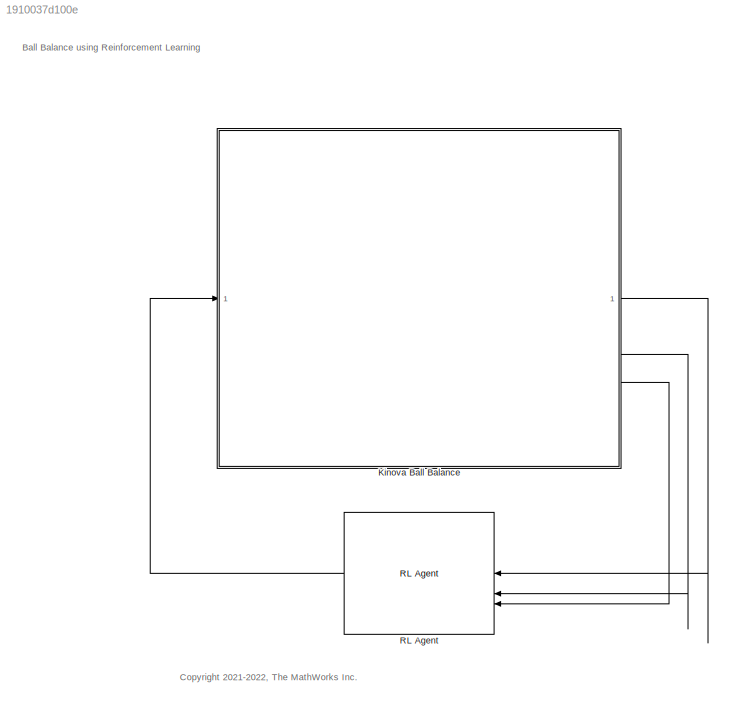
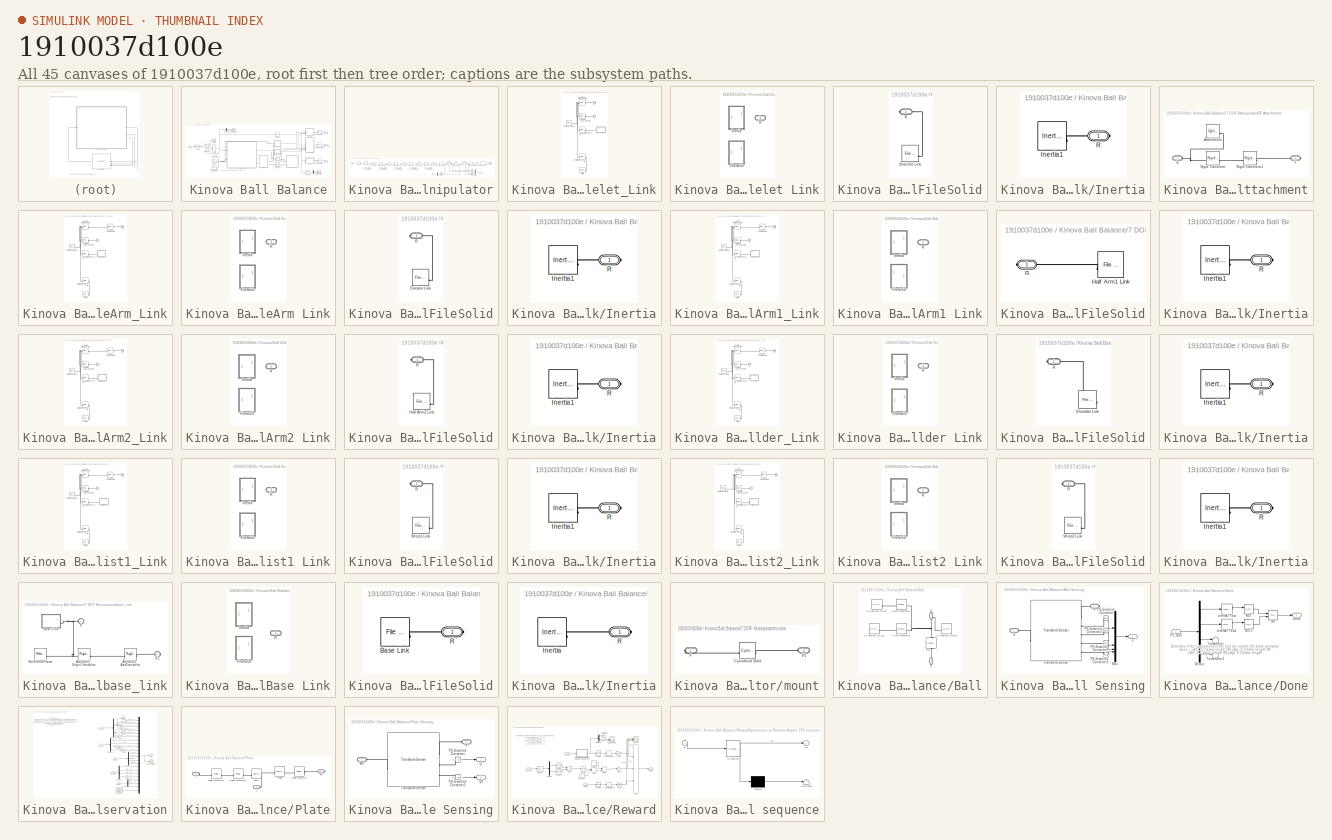
[diagram: thumbnail index - all 45 canvases of the model, root first then tree order]
MODEL slx_1910037d100e
KIND model
CONFIG AbsTol = 1e-3
CONFIG EnableMultiTasking = off
CONFIG FixedStep = auto
CONFIG MaxStep = auto
CONFIG MinStep = auto
CONFIG RelTol = 1e-2
CONFIG SampleTimeConstraint = Unconstrained
CONFIG SolverName = ode15s
CONFIG StartTime = 0.0
CONFIG StopTime = 10.0
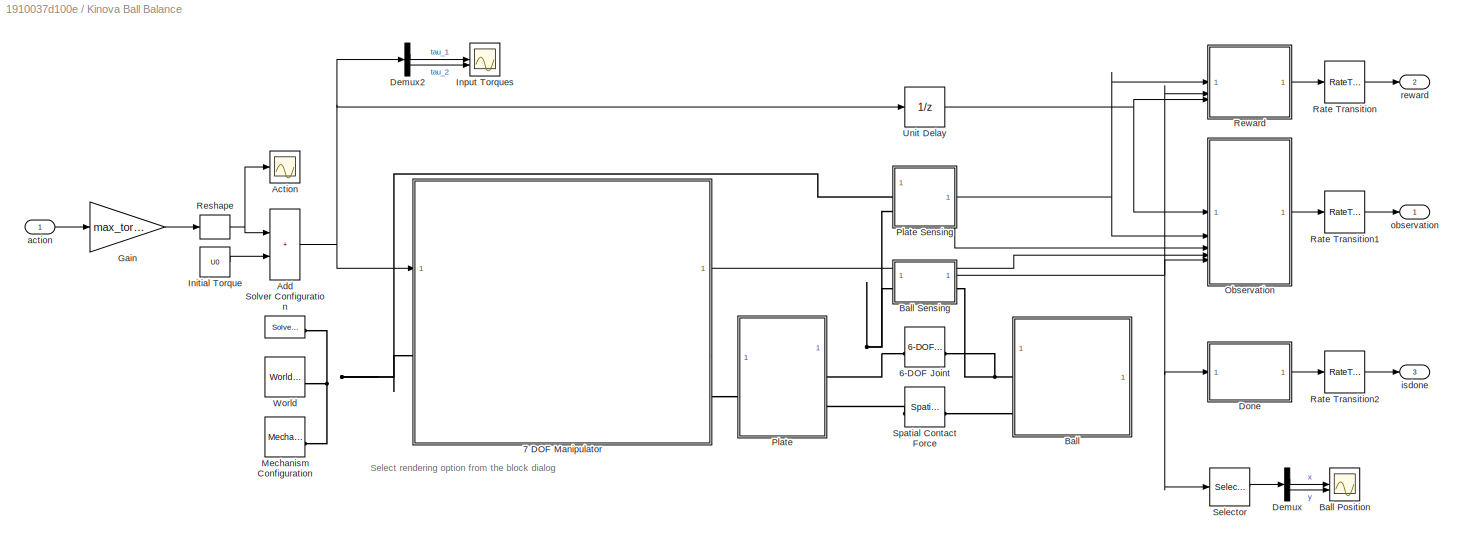
BLOCK [SubSystem] Kinova Ball Balance
BLOCK [Reference] Kinova Ball Balance/6-DOF Joint  REF=sm_lib/Joints/6-DOF Joint
  SourceBlock = sm_lib/Joints/6-DOF Joint
  SourceType = 6-DOF Joint
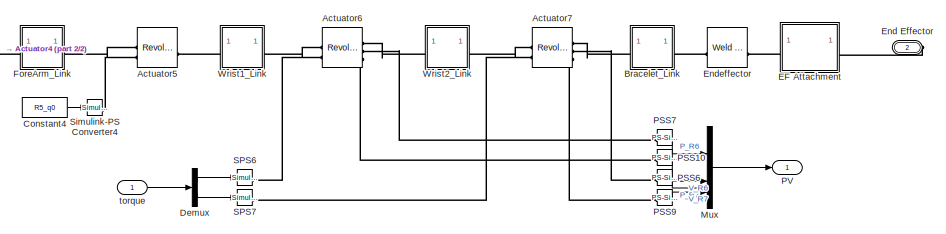
[diagram: Kinova Ball Balance/7 DOF Manipulator - part 1/2, right side, full height]
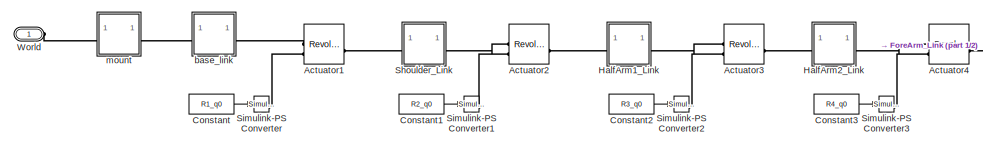
[diagram: Kinova Ball Balance/7 DOF Manipulator - part 2/2, middle left region]
BLOCK [SubSystem] Kinova Ball Balance/7 DOF Manipulator
BLOCK [Reference] Kinova Ball Balance/7 DOF Manipulator/Actuator1  REF=sm_lib/Joints/Revolute Joint
  SourceBlock = sm_lib/Joints/Revolute Joint
  SourceType = Revolute Joint
BLOCK [Reference] Kinova Ball Balance/7 DOF Manipulator/Actuator2  REF=sm_lib/Joints/Revolute Joint
  SourceBlock = sm_lib/Joints/Revolute Joint
  SourceType = Revolute Joint
BLOCK [Reference] Kinova Ball Balance/7 DOF Manipulator/Actuator3  REF=sm_lib/Joints/Revolute Joint
  SourceBlock = sm_lib/Joints/Revolute Joint
  SourceType = Revolute Joint
BLOCK [Reference] Kinova Ball Balance/7 DOF Manipulator/Actuator4  REF=sm_lib/Joints/Revolute Joint
  SourceBlock = sm_lib/Joints/Revolute Joint
  SourceType = Revolute Joint
BLOCK [Reference] Kinova Ball Balance/7 DOF Manipulator/Actuator5  REF=sm_lib/Joints/Revolute Joint
  SourceBlock = sm_lib/Joints/Revolute Joint
  SourceType = Revolute Joint
BLOCK [Reference] Kinova Ball Balance/7 DOF Manipulator/Actuator6  REF=sm_lib/Joints/Revolute Joint
  SourceBlock = sm_lib/Joints/Revolute Joint
  SourceType = Revolute Joint
BLOCK [Reference] Kinova Ball Balance/7 DOF Manipulator/Actuator7  REF=sm_lib/Joints/Revolute Joint
  SourceBlock = sm_lib/Joints/Revolute Joint
  SourceType = Revolute Joint
BLOCK [SubSystem] Kinova Ball Balance/7 DOF Manipulator/Bracelet_Link
BLOCK [Reference] Kinova Ball Balance/7 DOF Manipulator/Bracelet_Link/Actuator7_AxisInvTransform  REF=sm_lib/Frames and
Transforms/Rigid
Transform
  SourceBlock = sm_lib/Frames and\nTransforms/Rigid\nTransform
  SourceType = Rigid\nTransform
BLOCK [SubSystem] Kinova Ball Balance/7 DOF Manipulator/Bracelet_Link/Bracelet Link
  LabelModeActiveChoice = Choice
  Variant = on
  VariantControl = Choice
  VariantControlMode = label
BLOCK [SubSystem] Kinova Ball Balance/7 DOF Manipulator/Bracelet_Link/Bracelet Link/FileSolid
  VariantControl = Choice_1
BLOCK [Reference] Kinova Ball Balance/7 DOF Manipulator/Bracelet_Link/Bracelet Link/FileSolid/Bracelet Link  REF=sm_lib/Body Elements/File Solid
  SourceBlock = sm_lib/Body Elements/File Solid
  SourceType = File Solid
BLOCK [PMIOPort] Kinova Ball Balance/7 DOF Manipulator/Bracelet_Link/Bracelet Link/FileSolid/R
  Side = Right
BLOCK [SubSystem] Kinova Ball Balance/7 DOF Manipulator/Bracelet_Link/Bracelet Link/Inertia
  VariantControl = Choice
BLOCK [Reference] Kinova Ball Balance/7 DOF Manipulator/Bracelet_Link/Bracelet Link/Inertia/Inertia1  REF=sm_lib/Body Elements/Inertia
  SourceBlock = sm_lib/Body Elements/Inertia
  SourceType = Inertia
BLOCK [PMIOPort] Kinova Ball Balance/7 DOF Manipulator/Bracelet_Link/Bracelet Link/Inertia/R
  Side = Right
BLOCK [PMIOPort] Kinova Ball Balance/7 DOF Manipulator/Bracelet_Link/Bracelet Link/R
  Side = Right
BLOCK [Reference] Kinova Ball Balance/7 DOF Manipulator/Bracelet_Link/Endeffector_OriginTransform  REF=sm_lib/Frames and
Transforms/Rigid
Transform
  SourceBlock = sm_lib/Frames and\nTransforms/Rigid\nTransform
  SourceType = Rigid\nTransform
BLOCK [PMIOPort] Kinova Ball Balance/7 DOF Manipulator/Bracelet_Link/F
  Side = Left
BLOCK [PMIOPort] Kinova Ball Balance/7 DOF Manipulator/Bracelet_Link/F1
  Port = 2
  Side = Right
BLOCK [Reference] Kinova Ball Balance/7 DOF Manipulator/Bracelet_Link/Inertia  REF=sm_lib/Body Elements/Inertia
  SourceBlock = sm_lib/Body Elements/Inertia
  SourceType = Inertia
BLOCK [Reference] Kinova Ball Balance/7 DOF Manipulator/Bracelet_Link/InertiaOriginTransform  REF=sm_lib/Frames and
Transforms/Rigid
Transform
  SourceBlock = sm_lib/Frames and\nTransforms/Rigid\nTransform
  SourceType = Rigid\nTransform
BLOCK [Reference] Kinova Ball Balance/7 DOF Manipulator/Bracelet_Link/ReferenceFrame  REF=sm_lib/Frames and
Transforms/Reference
Frame
  SourceBlock = sm_lib/Frames and\nTransforms/Reference\nFrame
  SourceType = Reference\nFrame
BLOCK [Reference] Kinova Ball Balance/7 DOF Manipulator/Bracelet_Link/VisualOriginTransform  REF=sm_lib/Frames and
Transforms/Rigid
Transform
  SourceBlock = sm_lib/Frames and\nTransforms/Rigid\nTransform
  SourceType = Rigid\nTransform
BLOCK [Constant] Kinova Ball Balance/7 DOF Manipulator/Constant
  Value = R1_q0
BLOCK [Constant] Kinova Ball Balance/7 DOF Manipulator/Constant1
  Value = R2_q0
BLOCK [Constant] Kinova Ball Balance/7 DOF Manipulator/Constant2
  Value = R3_q0
BLOCK [Constant] Kinova Ball Balance/7 DOF Manipulator/Constant3
  Value = R4_q0
BLOCK [Constant] Kinova Ball Balance/7 DOF Manipulator/Constant4
  Value = R5_q0
BLOCK [Demux] Kinova Ball Balance/7 DOF Manipulator/Demux
  Outputs = 2
BLOCK [SubSystem] Kinova Ball Balance/7 DOF Manipulator/EF Attachment
BLOCK [Reference] Kinova Ball Balance/7 DOF Manipulator/EF Attachment/Attachment  REF=sm_lib/Body Elements/Cylindrical Solid
  SourceBlock = sm_lib/Body Elements/Cylindrical Solid
  SourceType = Cylindrical Solid
BLOCK [PMIOPort] Kinova Ball Balance/7 DOF Manipulator/EF Attachment/B
  Side = Left
BLOCK [PMIOPort] Kinova Ball Balance/7 DOF Manipulator/EF Attachment/F
  Port = 2
  Side = Right
BLOCK [Reference] Kinova Ball Balance/7 DOF Manipulator/EF Attachment/Rigid Transform  REF=sm_lib/Frames and
Transforms/Rigid
Transform
  SourceBlock = sm_lib/Frames and\nTransforms/Rigid\nTransform
  SourceType = Rigid\nTransform
BLOCK [Reference] Kinova Ball Balance/7 DOF Manipulator/EF Attachment/Rigid Transform1  REF=sm_lib/Frames and
Transforms/Rigid
Transform
  SourceBlock = sm_lib/Frames and\nTransforms/Rigid\nTransform
  SourceType = Rigid\nTransform
BLOCK [PMIOPort] Kinova Ball Balance/7 DOF Manipulator/End Effector
  Port = 2
  Side = Right
BLOCK [Reference] Kinova Ball Balance/7 DOF Manipulator/Endeffector  REF=sm_lib/Joints/Weld Joint
  SourceBlock = sm_lib/Joints/Weld Joint
  SourceType = Weld Joint
BLOCK [SubSystem] Kinova Ball Balance/7 DOF Manipulator/ForeArm_Link
BLOCK [Reference] Kinova Ball Balance/7 DOF Manipulator/ForeArm_Link/Actuator4_AxisInvTransform  REF=sm_lib/Frames and
Transforms/Rigid
Transform
  SourceBlock = sm_lib/Frames and\nTransforms/Rigid\nTransform
  SourceType = Rigid\nTransform
BLOCK [Reference] Kinova Ball Balance/7 DOF Manipulator/ForeArm_Link/Actuator5_AxisTransform  REF=sm_lib/Frames and
Transforms/Rigid
Transform
  SourceBlock = sm_lib/Frames and\nTransforms/Rigid\nTransform
  SourceType = Rigid\nTransform
BLOCK [Reference] Kinova Ball Balance/7 DOF Manipulator/ForeArm_Link/Actuator5_OriginTransform  REF=sm_lib/Frames and
Transforms/Rigid
Transform
  SourceBlock = sm_lib/Frames and\nTransforms/Rigid\nTransform
  SourceType = Rigid\nTransform
BLOCK [PMIOPort] Kinova Ball Balance/7 DOF Manipulator/ForeArm_Link/F
  Side = Left
BLOCK [PMIOPort] Kinova Ball Balance/7 DOF Manipulator/ForeArm_Link/F1
  Port = 2
  Side = Right
BLOCK [SubSystem] Kinova Ball Balance/7 DOF Manipulator/ForeArm_Link/ForeArm Link
  LabelModeActiveChoice = Choice
  Variant = on
  VariantControl = Choice
  VariantControlMode = label
BLOCK [SubSystem] Kinova Ball Balance/7 DOF Manipulator/ForeArm_Link/ForeArm Link/FileSolid
  VariantControl = Choice_1
BLOCK [Reference] Kinova Ball Balance/7 DOF Manipulator/ForeArm_Link/ForeArm Link/FileSolid/Forearm Link  REF=sm_lib/Body Elements/File Solid
  SourceBlock = sm_lib/Body Elements/File Solid
  SourceType = File Solid
BLOCK [PMIOPort] Kinova Ball Balance/7 DOF Manipulator/ForeArm_Link/ForeArm Link/FileSolid/R
  Side = Right
BLOCK [SubSystem] Kinova Ball Balance/7 DOF Manipulator/ForeArm_Link/ForeArm Link/Inertia
  VariantControl = Choice
BLOCK [Reference] Kinova Ball Balance/7 DOF Manipulator/ForeArm_Link/ForeArm Link/Inertia/Inertia1  REF=sm_lib/Body Elements/Inertia
  SourceBlock = sm_lib/Body Elements/Inertia
  SourceType = Inertia
BLOCK [PMIOPort] Kinova Ball Balance/7 DOF Manipulator/ForeArm_Link/ForeArm Link/Inertia/R
  Side = Right
BLOCK [PMIOPort] Kinova Ball Balance/7 DOF Manipulator/ForeArm_Link/ForeArm Link/R
  Side = Right
BLOCK [Reference] Kinova Ball Balance/7 DOF Manipulator/ForeArm_Link/Inertia  REF=sm_lib/Body Elements/Inertia
  SourceBlock = sm_lib/Body Elements/Inertia
  SourceType = Inertia
BLOCK [Reference] Kinova Ball Balance/7 DOF Manipulator/ForeArm_Link/InertiaOriginTransform  REF=sm_lib/Frames and
Transforms/Rigid
Transform
  SourceBlock = sm_lib/Frames and\nTransforms/Rigid\nTransform
  SourceType = Rigid\nTransform
BLOCK [Reference] Kinova Ball Balance/7 DOF Manipulator/ForeArm_Link/ReferenceFrame  REF=sm_lib/Frames and
Transforms/Reference
Frame
  SourceBlock = sm_lib/Frames and\nTransforms/Reference\nFrame
  SourceType = Reference\nFrame
BLOCK [Reference] Kinova Ball Balance/7 DOF Manipulator/ForeArm_Link/VisualOriginTransform  REF=sm_lib/Frames and
Transforms/Rigid
Transform
  SourceBlock = sm_lib/Frames and\nTransforms/Rigid\nTransform
  SourceType = Rigid\nTransform
BLOCK [SubSystem] Kinova Ball Balance/7 DOF Manipulator/HalfArm1_Link
BLOCK [Reference] Kinova Ball Balance/7 DOF Manipulator/HalfArm1_Link/Actuator2_AxisInvTransform  REF=sm_lib/Frames and
Transforms/Rigid
Transform
  SourceBlock = sm_lib/Frames and\nTransforms/Rigid\nTransform
  SourceType = Rigid\nTransform
BLOCK [Reference] Kinova Ball Balance/7 DOF Manipulator/HalfArm1_Link/Actuator3_AxisTransform  REF=sm_lib/Frames and
Transforms/Rigid
Transform
  SourceBlock = sm_lib/Frames and\nTransforms/Rigid\nTransform
  SourceType = Rigid\nTransform
BLOCK [Reference] Kinova Ball Balance/7 DOF Manipulator/HalfArm1_Link/Actuator3_OriginTransform  REF=sm_lib/Frames and
Transforms/Rigid
Transform
  SourceBlock = sm_lib/Frames and\nTransforms/Rigid\nTransform
  SourceType = Rigid\nTransform
BLOCK [PMIOPort] Kinova Ball Balance/7 DOF Manipulator/HalfArm1_Link/F
  Side = Left
BLOCK [PMIOPort] Kinova Ball Balance/7 DOF Manipulator/HalfArm1_Link/F1
  Port = 2
  Side = Right
BLOCK [SubSystem] Kinova Ball Balance/7 DOF Manipulator/HalfArm1_Link/HalfArm1 Link
  LabelModeActiveChoice = Choice
  Variant = on
  VariantControl = Choice
  VariantControlMode = label
BLOCK [SubSystem] Kinova Ball Balance/7 DOF Manipulator/HalfArm1_Link/HalfArm1 Link/FileSolid
  VariantControl = Choice_1
BLOCK [Reference] Kinova Ball Balance/7 DOF Manipulator/HalfArm1_Link/HalfArm1 Link/FileSolid/Half Arm1 Link  REF=sm_lib/Body Elements/File Solid
  SourceBlock = sm_lib/Body Elements/File Solid
  SourceType = File Solid
BLOCK [PMIOPort] Kinova Ball Balance/7 DOF Manipulator/HalfArm1_Link/HalfArm1 Link/FileSolid/R
  Side = Right
BLOCK [SubSystem] Kinova Ball Balance/7 DOF Manipulator/HalfArm1_Link/HalfArm1 Link/Inertia
  VariantControl = Choice
BLOCK [Reference] Kinova Ball Balance/7 DOF Manipulator/HalfArm1_Link/HalfArm1 Link/Inertia/Inertia1  REF=sm_lib/Body Elements/Inertia
  SourceBlock = sm_lib/Body Elements/Inertia
  SourceType = Inertia
BLOCK [PMIOPort] Kinova Ball Balance/7 DOF Manipulator/HalfArm1_Link/HalfArm1 Link/Inertia/R
  Side = Right
BLOCK [PMIOPort] Kinova Ball Balance/7 DOF Manipulator/HalfArm1_Link/HalfArm1 Link/R
  Side = Right
BLOCK [Reference] Kinova Ball Balance/7 DOF Manipulator/HalfArm1_Link/Inertia  REF=sm_lib/Body Elements/Inertia
  SourceBlock = sm_lib/Body Elements/Inertia
  SourceType = Inertia
BLOCK [Reference] Kinova Ball Balance/7 DOF Manipulator/HalfArm1_Link/InertiaOriginTransform  REF=sm_lib/Frames and
Transforms/Rigid
Transform
  SourceBlock = sm_lib/Frames and\nTransforms/Rigid\nTransform
  SourceType = Rigid\nTransform
BLOCK [Reference] Kinova Ball Balance/7 DOF Manipulator/HalfArm1_Link/ReferenceFrame  REF=sm_lib/Frames and
Transforms/Reference
Frame
  SourceBlock = sm_lib/Frames and\nTransforms/Reference\nFrame
  SourceType = Reference\nFrame
BLOCK [Reference] Kinova Ball Balance/7 DOF Manipulator/HalfArm1_Link/VisualOriginTransform  REF=sm_lib/Frames and
Transforms/Rigid
Transform
  SourceBlock = sm_lib/Frames and\nTransforms/Rigid\nTransform
  SourceType = Rigid\nTransform
BLOCK [SubSystem] Kinova Ball Balance/7 DOF Manipulator/HalfArm2_Link
BLOCK [Reference] Kinova Ball Balance/7 DOF Manipulator/HalfArm2_Link/Actuator3_AxisInvTransform  REF=sm_lib/Frames and
Transforms/Rigid
Transform
  SourceBlock = sm_lib/Frames and\nTransforms/Rigid\nTransform
  SourceType = Rigid\nTransform
BLOCK [Reference] Kinova Ball Balance/7 DOF Manipulator/HalfArm2_Link/Actuator4_AxisTransform  REF=sm_lib/Frames and
Transforms/Rigid
Transform
  SourceBlock = sm_lib/Frames and\nTransforms/Rigid\nTransform
  SourceType = Rigid\nTransform
BLOCK [Reference] Kinova Ball Balance/7 DOF Manipulator/HalfArm2_Link/Actuator4_OriginTransform  REF=sm_lib/Frames and
Transforms/Rigid
Transform
  SourceBlock = sm_lib/Frames and\nTransforms/Rigid\nTransform
  SourceType = Rigid\nTransform
BLOCK [PMIOPort] Kinova Ball Balance/7 DOF Manipulator/HalfArm2_Link/F
  Side = Left
BLOCK [PMIOPort] Kinova Ball Balance/7 DOF Manipulator/HalfArm2_Link/F1
  Port = 2
  Side = Right
BLOCK [SubSystem] Kinova Ball Balance/7 DOF Manipulator/HalfArm2_Link/HalfArm2 Link
  LabelModeActiveChoice = Choice
  Variant = on
  VariantControl = Choice
  VariantControlMode = label
BLOCK [SubSystem] Kinova Ball Balance/7 DOF Manipulator/HalfArm2_Link/HalfArm2 Link/FileSolid
  VariantControl = Choice_1
BLOCK [Reference] Kinova Ball Balance/7 DOF Manipulator/HalfArm2_Link/HalfArm2 Link/FileSolid/Half Arm2 Link  REF=sm_lib/Body Elements/File Solid
  SourceBlock = sm_lib/Body Elements/File Solid
  SourceType = File Solid
BLOCK [PMIOPort] Kinova Ball Balance/7 DOF Manipulator/HalfArm2_Link/HalfArm2 Link/FileSolid/R
  Side = Right
BLOCK [SubSystem] Kinova Ball Balance/7 DOF Manipulator/HalfArm2_Link/HalfArm2 Link/Inertia
  VariantControl = Choice
BLOCK [Reference] Kinova Ball Balance/7 DOF Manipulator/HalfArm2_Link/HalfArm2 Link/Inertia/Inertia1  REF=sm_lib/Body Elements/Inertia
  SourceBlock = sm_lib/Body Elements/Inertia
  SourceType = Inertia
BLOCK [PMIOPort] Kinova Ball Balance/7 DOF Manipulator/HalfArm2_Link/HalfArm2 Link/Inertia/R
  Side = Right
BLOCK [PMIOPort] Kinova Ball Balance/7 DOF Manipulator/HalfArm2_Link/HalfArm2 Link/R
  Side = Right
BLOCK [Reference] Kinova Ball Balance/7 DOF Manipulator/HalfArm2_Link/Inertia  REF=sm_lib/Body Elements/Inertia
  SourceBlock = sm_lib/Body Elements/Inertia
  SourceType = Inertia
BLOCK [Reference] Kinova Ball Balance/7 DOF Manipulator/HalfArm2_Link/InertiaOriginTransform  REF=sm_lib/Frames and
Transforms/Rigid
Transform
  SourceBlock = sm_lib/Frames and\nTransforms/Rigid\nTransform
  SourceType = Rigid\nTransform
BLOCK [Reference] Kinova Ball Balance/7 DOF Manipulator/HalfArm2_Link/ReferenceFrame  REF=sm_lib/Frames and
Transforms/Reference
Frame
  SourceBlock = sm_lib/Frames and\nTransforms/Reference\nFrame
  SourceType = Reference\nFrame
BLOCK [Reference] Kinova Ball Balance/7 DOF Manipulator/HalfArm2_Link/VisualOriginTransform  REF=sm_lib/Frames and
Transforms/Rigid
Transform
  SourceBlock = sm_lib/Frames and\nTransforms/Rigid\nTransform
  SourceType = Rigid\nTransform
BLOCK [Mux] Kinova Ball Balance/7 DOF Manipulator/Mux
  DisplayOption = bar
BLOCK [Reference] Kinova Ball Balance/7 DOF Manipulator/PSS10  REF=nesl_utility_internal/PS-Simulink
Converter
  NameLocation = top
  SourceBlock = nesl_utility_internal/PS-Simulink\nConverter
  SourceType = PS-Simulink\nConverter
BLOCK [Reference] Kinova Ball Balance/7 DOF Manipulator/PSS6  REF=nesl_utility_internal/PS-Simulink
Converter
  NameLocation = top
  SourceBlock = nesl_utility_internal/PS-Simulink\nConverter
  SourceType = PS-Simulink\nConverter
BLOCK [Reference] Kinova Ball Balance/7 DOF Manipulator/PSS7  REF=nesl_utility_internal/PS-Simulink
Converter
  NameLocation = top
  SourceBlock = nesl_utility_internal/PS-Simulink\nConverter
  SourceType = PS-Simulink\nConverter
BLOCK [Reference] Kinova Ball Balance/7 DOF Manipulator/PSS9  REF=nesl_utility_internal/PS-Simulink
Converter
  NameLocation = top
  SourceBlock = nesl_utility_internal/PS-Simulink\nConverter
  SourceType = PS-Simulink\nConverter
BLOCK [Outport] Kinova Ball Balance/7 DOF Manipulator/PV
  NameLocation = top
BLOCK [Reference] Kinova Ball Balance/7 DOF Manipulator/SPS6  REF=nesl_utility_internal/Simulink-PS
Converter
  NameLocation = top
  SourceBlock = nesl_utility_internal/Simulink-PS\nConverter
  SourceType = Simulink-PS\nConverter
BLOCK [Reference] Kinova Ball Balance/7 DOF Manipulator/SPS7  REF=nesl_utility_internal/Simulink-PS
Converter
  NameLocation = top
  SourceBlock = nesl_utility_internal/Simulink-PS\nConverter
  SourceType = Simulink-PS\nConverter
BLOCK [SubSystem] Kinova Ball Balance/7 DOF Manipulator/Shoulder_Link
BLOCK [Reference] Kinova Ball Balance/7 DOF Manipulator/Shoulder_Link/Actuator1_AxisInvTransform  REF=sm_lib/Frames and
Transforms/Rigid
Transform
  SourceBlock = sm_lib/Frames and\nTransforms/Rigid\nTransform
  SourceType = Rigid\nTransform
BLOCK [Reference] Kinova Ball Balance/7 DOF Manipulator/Shoulder_Link/Actuator2_AxisTransform  REF=sm_lib/Frames and
Transforms/Rigid
Transform
  SourceBlock = sm_lib/Frames and\nTransforms/Rigid\nTransform
  SourceType = Rigid\nTransform
BLOCK [Reference] Kinova Ball Balance/7 DOF Manipulator/Shoulder_Link/Actuator2_OriginTransform  REF=sm_lib/Frames and
Transforms/Rigid
Transform
  SourceBlock = sm_lib/Frames and\nTransforms/Rigid\nTransform
  SourceType = Rigid\nTransform
BLOCK [PMIOPort] Kinova Ball Balance/7 DOF Manipulator/Shoulder_Link/F
  Side = Left
BLOCK [PMIOPort] Kinova Ball Balance/7 DOF Manipulator/Shoulder_Link/F1
  Port = 2
  Side = Right
BLOCK [Reference] Kinova Ball Balance/7 DOF Manipulator/Shoulder_Link/Inertia  REF=sm_lib/Body Elements/Inertia
  SourceBlock = sm_lib/Body Elements/Inertia
  SourceType = Inertia
BLOCK [Reference] Kinova Ball Balance/7 DOF Manipulator/Shoulder_Link/InertiaOriginTransform  REF=sm_lib/Frames and
Transforms/Rigid
Transform
  SourceBlock = sm_lib/Frames and\nTransforms/Rigid\nTransform
  SourceType = Rigid\nTransform
BLOCK [Reference] Kinova Ball Balance/7 DOF Manipulator/Shoulder_Link/ReferenceFrame  REF=sm_lib/Frames and
Transforms/Reference
Frame
  SourceBlock = sm_lib/Frames and\nTransforms/Reference\nFrame
  SourceType = Reference\nFrame
BLOCK [SubSystem] Kinova Ball Balance/7 DOF Manipulator/Shoulder_Link/Shoulder Link
  LabelModeActiveChoice = Choice
  Variant = on
  VariantControl = Choice
  VariantControlMode = label
BLOCK [SubSystem] Kinova Ball Balance/7 DOF Manipulator/Shoulder_Link/Shoulder Link/FileSolid
  VariantControl = Choice_1
BLOCK [PMIOPort] Kinova Ball Balance/7 DOF Manipulator/Shoulder_Link/Shoulder Link/FileSolid/R
  Side = Right
BLOCK [Reference] Kinova Ball Balance/7 DOF Manipulator/Shoulder_Link/Shoulder Link/FileSolid/Shoulder Link  REF=sm_lib/Body Elements/File Solid
  SourceBlock = sm_lib/Body Elements/File Solid
  SourceType = File Solid
BLOCK [SubSystem] Kinova Ball Balance/7 DOF Manipulator/Shoulder_Link/Shoulder Link/Inertia
  VariantControl = Choice
BLOCK [Reference] Kinova Ball Balance/7 DOF Manipulator/Shoulder_Link/Shoulder Link/Inertia/Inertia1  REF=sm_lib/Body Elements/Inertia
  SourceBlock = sm_lib/Body Elements/Inertia
  SourceType = Inertia
BLOCK [PMIOPort] Kinova Ball Balance/7 DOF Manipulator/Shoulder_Link/Shoulder Link/Inertia/R
  Side = Right
BLOCK [PMIOPort] Kinova Ball Balance/7 DOF Manipulator/Shoulder_Link/Shoulder Link/R
  Side = Right
BLOCK [Reference] Kinova Ball Balance/7 DOF Manipulator/Shoulder_Link/VisualOriginTransform  REF=sm_lib/Frames and
Transforms/Rigid
Transform
  SourceBlock = sm_lib/Frames and\nTransforms/Rigid\nTransform
  SourceType = Rigid\nTransform
BLOCK [Reference] Kinova Ball Balance/7 DOF Manipulator/Simulink-PS Converter  REF=nesl_utility_internal/Simulink-PS
Converter
  SourceBlock = nesl_utility_internal/Simulink-PS\nConverter
  SourceType = Simulink-PS\nConverter
BLOCK [Reference] Kinova Ball Balance/7 DOF Manipulator/Simulink-PS Converter1  REF=nesl_utility_internal/Simulink-PS
Converter
  SourceBlock = nesl_utility_internal/Simulink-PS\nConverter
  SourceType = Simulink-PS\nConverter
BLOCK [Reference] Kinova Ball Balance/7 DOF Manipulator/Simulink-PS Converter2  REF=nesl_utility_internal/Simulink-PS
Converter
  SourceBlock = nesl_utility_internal/Simulink-PS\nConverter
  SourceType = Simulink-PS\nConverter
BLOCK [Reference] Kinova Ball Balance/7 DOF Manipulator/Simulink-PS Converter3  REF=nesl_utility_internal/Simulink-PS
Converter
  SourceBlock = nesl_utility_internal/Simulink-PS\nConverter
  SourceType = Simulink-PS\nConverter
BLOCK [Reference] Kinova Ball Balance/7 DOF Manipulator/Simulink-PS Converter4  REF=nesl_utility_internal/Simulink-PS
Converter
  SourceBlock = nesl_utility_internal/Simulink-PS\nConverter
  SourceType = Simulink-PS\nConverter
BLOCK [PMIOPort] Kinova Ball Balance/7 DOF Manipulator/World
  Side = Left
BLOCK [SubSystem] Kinova Ball Balance/7 DOF Manipulator/Wrist1_Link
BLOCK [Reference] Kinova Ball Balance/7 DOF Manipulator/Wrist1_Link/Actuator5_AxisInvTransform  REF=sm_lib/Frames and
Transforms/Rigid
Transform
  SourceBlock = sm_lib/Frames and\nTransforms/Rigid\nTransform
  SourceType = Rigid\nTransform
BLOCK [Reference] Kinova Ball Balance/7 DOF Manipulator/Wrist1_Link/Actuator6_AxisTransform  REF=sm_lib/Frames and
Transforms/Rigid
Transform
  SourceBlock = sm_lib/Frames and\nTransforms/Rigid\nTransform
  SourceType = Rigid\nTransform
BLOCK [Reference] Kinova Ball Balance/7 DOF Manipulator/Wrist1_Link/Actuator6_OriginTransform  REF=sm_lib/Frames and
Transforms/Rigid
Transform
  SourceBlock = sm_lib/Frames and\nTransforms/Rigid\nTransform
  SourceType = Rigid\nTransform
BLOCK [PMIOPort] Kinova Ball Balance/7 DOF Manipulator/Wrist1_Link/F
  Side = Left
BLOCK [PMIOPort] Kinova Ball Balance/7 DOF Manipulator/Wrist1_Link/F1
  Port = 2
  Side = Right
BLOCK [Reference] Kinova Ball Balance/7 DOF Manipulator/Wrist1_Link/Inertia  REF=sm_lib/Body Elements/Inertia
  SourceBlock = sm_lib/Body Elements/Inertia
  SourceType = Inertia
BLOCK [Reference] Kinova Ball Balance/7 DOF Manipulator/Wrist1_Link/InertiaOriginTransform  REF=sm_lib/Frames and
Transforms/Rigid
Transform
  SourceBlock = sm_lib/Frames and\nTransforms/Rigid\nTransform
  SourceType = Rigid\nTransform
BLOCK [Reference] Kinova Ball Balance/7 DOF Manipulator/Wrist1_Link/ReferenceFrame  REF=sm_lib/Frames and
Transforms/Reference
Frame
  SourceBlock = sm_lib/Frames and\nTransforms/Reference\nFrame
  SourceType = Reference\nFrame
BLOCK [Reference] Kinova Ball Balance/7 DOF Manipulator/Wrist1_Link/VisualOriginTransform  REF=sm_lib/Frames and
Transforms/Rigid
Transform
  SourceBlock = sm_lib/Frames and\nTransforms/Rigid\nTransform
  SourceType = Rigid\nTransform
BLOCK [SubSystem] Kinova Ball Balance/7 DOF Manipulator/Wrist1_Link/Wrist1 Link
  LabelModeActiveChoice = Choice
  Variant = on
  VariantControl = Choice
  VariantControlMode = label
BLOCK [SubSystem] Kinova Ball Balance/7 DOF Manipulator/Wrist1_Link/Wrist1 Link/FileSolid
  VariantControl = Choice_1
BLOCK [PMIOPort] Kinova Ball Balance/7 DOF Manipulator/Wrist1_Link/Wrist1 Link/FileSolid/R
  Side = Right
BLOCK [Reference] Kinova Ball Balance/7 DOF Manipulator/Wrist1_Link/Wrist1 Link/FileSolid/Wrist1 Link  REF=sm_lib/Body Elements/File Solid
  SourceBlock = sm_lib/Body Elements/File Solid
  SourceType = File Solid
BLOCK [SubSystem] Kinova Ball Balance/7 DOF Manipulator/Wrist1_Link/Wrist1 Link/Inertia
  VariantControl = Choice
BLOCK [Reference] Kinova Ball Balance/7 DOF Manipulator/Wrist1_Link/Wrist1 Link/Inertia/Inertia1  REF=sm_lib/Body Elements/Inertia
  SourceBlock = sm_lib/Body Elements/Inertia
  SourceType = Inertia
BLOCK [PMIOPort] Kinova Ball Balance/7 DOF Manipulator/Wrist1_Link/Wrist1 Link/Inertia/R
  Side = Right
BLOCK [PMIOPort] Kinova Ball Balance/7 DOF Manipulator/Wrist1_Link/Wrist1 Link/R
  Side = Right
BLOCK [SubSystem] Kinova Ball Balance/7 DOF Manipulator/Wrist2_Link
BLOCK [Reference] Kinova Ball Balance/7 DOF Manipulator/Wrist2_Link/Actuator6_AxisInvTransform  REF=sm_lib/Frames and
Transforms/Rigid
Transform
  SourceBlock = sm_lib/Frames and\nTransforms/Rigid\nTransform
  SourceType = Rigid\nTransform
BLOCK [Reference] Kinova Ball Balance/7 DOF Manipulator/Wrist2_Link/Actuator7_AxisTransform  REF=sm_lib/Frames and
Transforms/Rigid
Transform
  SourceBlock = sm_lib/Frames and\nTransforms/Rigid\nTransform
  SourceType = Rigid\nTransform
BLOCK [Reference] Kinova Ball Balance/7 DOF Manipulator/Wrist2_Link/Actuator7_OriginTransform  REF=sm_lib/Frames and
Transforms/Rigid
Transform
  SourceBlock = sm_lib/Frames and\nTransforms/Rigid\nTransform
  SourceType = Rigid\nTransform
BLOCK [PMIOPort] Kinova Ball Balance/7 DOF Manipulator/Wrist2_Link/F
  Side = Left
BLOCK [PMIOPort] Kinova Ball Balance/7 DOF Manipulator/Wrist2_Link/F1
  Port = 2
  Side = Right
BLOCK [Reference] Kinova Ball Balance/7 DOF Manipulator/Wrist2_Link/Inertia  REF=sm_lib/Body Elements/Inertia
  SourceBlock = sm_lib/Body Elements/Inertia
  SourceType = Inertia
BLOCK [Reference] Kinova Ball Balance/7 DOF Manipulator/Wrist2_Link/InertiaOriginTransform  REF=sm_lib/Frames and
Transforms/Rigid
Transform
  SourceBlock = sm_lib/Frames and\nTransforms/Rigid\nTransform
  SourceType = Rigid\nTransform
BLOCK [Reference] Kinova Ball Balance/7 DOF Manipulator/Wrist2_Link/ReferenceFrame  REF=sm_lib/Frames and
Transforms/Reference
Frame
  SourceBlock = sm_lib/Frames and\nTransforms/Reference\nFrame
  SourceType = Reference\nFrame
BLOCK [Reference] Kinova Ball Balance/7 DOF Manipulator/Wrist2_Link/VisualOriginTransform  REF=sm_lib/Frames and
Transforms/Rigid
Transform
  SourceBlock = sm_lib/Frames and\nTransforms/Rigid\nTransform
  SourceType = Rigid\nTransform
BLOCK [SubSystem] Kinova Ball Balance/7 DOF Manipulator/Wrist2_Link/Wrist2 Link
  LabelModeActiveChoice = Choice
  Variant = on
  VariantControl = Choice
  VariantControlMode = label
BLOCK [SubSystem] Kinova Ball Balance/7 DOF Manipulator/Wrist2_Link/Wrist2 Link/FileSolid
  VariantControl = Choice_1
BLOCK [PMIOPort] Kinova Ball Balance/7 DOF Manipulator/Wrist2_Link/Wrist2 Link/FileSolid/R
  Side = Right
BLOCK [Reference] Kinova Ball Balance/7 DOF Manipulator/Wrist2_Link/Wrist2 Link/FileSolid/Wrist2 Link  REF=sm_lib/Body Elements/File Solid
  SourceBlock = sm_lib/Body Elements/File Solid
  SourceType = File Solid
BLOCK [SubSystem] Kinova Ball Balance/7 DOF Manipulator/Wrist2_Link/Wrist2 Link/Inertia
  VariantControl = Choice
BLOCK [Reference] Kinova Ball Balance/7 DOF Manipulator/Wrist2_Link/Wrist2 Link/Inertia/Inertia1  REF=sm_lib/Body Elements/Inertia
  SourceBlock = sm_lib/Body Elements/Inertia
  SourceType = Inertia
BLOCK [PMIOPort] Kinova Ball Balance/7 DOF Manipulator/Wrist2_Link/Wrist2 Link/Inertia/R
  Side = Right
BLOCK [PMIOPort] Kinova Ball Balance/7 DOF Manipulator/Wrist2_Link/Wrist2 Link/R
  Side = Right
BLOCK [SubSystem] Kinova Ball Balance/7 DOF Manipulator/base_link
BLOCK [Reference] Kinova Ball Balance/7 DOF Manipulator/base_link/Actuator1_AxisTransform  REF=sm_lib/Frames and
Transforms/Rigid
Transform
  SourceBlock = sm_lib/Frames and\nTransforms/Rigid\nTransform
  SourceType = Rigid\nTransform
BLOCK [Reference] Kinova Ball Balance/7 DOF Manipulator/base_link/Actuator1_OriginTransform  REF=sm_lib/Frames and
Transforms/Rigid
Transform
  SourceBlock = sm_lib/Frames and\nTransforms/Rigid\nTransform
  SourceType = Rigid\nTransform
BLOCK [SubSystem] Kinova Ball Balance/7 DOF Manipulator/base_link/Base Link
  LabelModeActiveChoice = Choice
  Variant = on
  VariantControl = Choice
  VariantControlMode = label
BLOCK [SubSystem] Kinova Ball Balance/7 DOF Manipulator/base_link/Base Link/FileSolid
  VariantControl = Choice_1
BLOCK [Reference] Kinova Ball Balance/7 DOF Manipulator/base_link/Base Link/FileSolid/Base Link  REF=sm_lib/Body Elements/File Solid
  SourceBlock = sm_lib/Body Elements/File Solid
  SourceType = File Solid
BLOCK [PMIOPort] Kinova Ball Balance/7 DOF Manipulator/base_link/Base Link/FileSolid/R
  Side = Right
BLOCK [SubSystem] Kinova Ball Balance/7 DOF Manipulator/base_link/Base Link/Inertia
  VariantControl = Choice
BLOCK [Reference] Kinova Ball Balance/7 DOF Manipulator/base_link/Base Link/Inertia/Inertia  REF=sm_lib/Body Elements/Inertia
  SourceBlock = sm_lib/Body Elements/Inertia
  SourceType = Inertia
BLOCK [PMIOPort] Kinova Ball Balance/7 DOF Manipulator/base_link/Base Link/Inertia/R
  Side = Right
BLOCK [PMIOPort] Kinova Ball Balance/7 DOF Manipulator/base_link/Base Link/R
  Side = Right
BLOCK [PMIOPort] Kinova Ball Balance/7 DOF Manipulator/base_link/F
  NameLocation = top
  Side = Left
BLOCK [PMIOPort] Kinova Ball Balance/7 DOF Manipulator/base_link/F1
  Port = 2
  Side = Right
BLOCK [Reference] Kinova Ball Balance/7 DOF Manipulator/base_link/ReferenceFrame  REF=sm_lib/Frames and
Transforms/Reference
Frame
  SourceBlock = sm_lib/Frames and\nTransforms/Reference\nFrame
  SourceType = Reference\nFrame
BLOCK [SubSystem] Kinova Ball Balance/7 DOF Manipulator/mount
BLOCK [Reference] Kinova Ball Balance/7 DOF Manipulator/mount/Cylindrical Solid  REF=sm_lib/Body Elements/Cylindrical Solid
  NameLocation = top
  SourceBlock = sm_lib/Body Elements/Cylindrical Solid
  SourceType = Cylindrical Solid
BLOCK [PMIOPort] Kinova Ball Balance/7 DOF Manipulator/mount/F
  Side = Right
BLOCK [PMIOPort] Kinova Ball Balance/7 DOF Manipulator/mount/F1
  Port = 2
  Side = Left
BLOCK [Inport] Kinova Ball Balance/7 DOF Manipulator/torque
  NameLocation = top
BLOCK [Scope] Kinova Ball Balance/Action
  Floating = off
  NumInputPorts = 1
  ScopeSpecificationString = Simulink.scopes.TimeScopeBlockCfg('CurrentConfiguration', extmgr.ConfigurationSet(extmgr.Configuration('Core','General UI',true),extmgr.Configuration('Core','Source UI',true),extmgr.Configuration('Sources','WiredSimulink',true,'DataLoggingVariableName','ScopeData2'),extmgr.Configuration('Visuals','Time Domain',true,'SerializedDisplays',{struct('MinYLimReal','-0.31231','MaxYLimReal','0.31242','YLab...<+1438ch>
BLOCK [Sum] Kinova Ball Balance/Add
  IconShape = rectangular
BLOCK [SubSystem] Kinova Ball Balance/Ball
BLOCK [Scope] Kinova Ball Balance/Ball Position
  Floating = off
  NumInputPorts = 2
  ScopeSpecificationString = Simulink.scopes.TimeScopeBlockCfg('CurrentConfiguration', extmgr.ConfigurationSet(extmgr.Configuration('Core','General UI',true),extmgr.Configuration('Core','Source UI',true),extmgr.Configuration('Sources','WiredSimulink',true,'DataLoggingVariableName','ScopeData5'),extmgr.Configuration('Visuals','Time Domain',true,'SerializedDisplays',{struct('MinYLimReal','-0.01354','MaxYLimReal','0.00154','YLab...<+2243ch>
BLOCK [SubSystem] Kinova Ball Balance/Ball Sensing
BLOCK [PMIOPort] Kinova Ball Balance/Ball Sensing/B
  Side = Left
BLOCK [PMIOPort] Kinova Ball Balance/Ball Sensing/F
  Port = 2
  Side = Right
BLOCK [Mux] Kinova Ball Balance/Ball Sensing/Mux
  DisplayOption = bar
BLOCK [Reference] Kinova Ball Balance/Ball Sensing/PS-Simulink Converter  REF=nesl_utility_internal/PS-Simulink
Converter
  SourceBlock = nesl_utility_internal/PS-Simulink\nConverter
  SourceType = PS-Simulink\nConverter
BLOCK [Reference] Kinova Ball Balance/Ball Sensing/PS-Simulink Converter1  REF=nesl_utility_internal/PS-Simulink
Converter
  SourceBlock = nesl_utility_internal/PS-Simulink\nConverter
  SourceType = PS-Simulink\nConverter
BLOCK [Reference] Kinova Ball Balance/Ball Sensing/PS-Simulink Converter2  REF=nesl_utility_internal/PS-Simulink
Converter
  SourceBlock = nesl_utility_internal/PS-Simulink\nConverter
  SourceType = PS-Simulink\nConverter
BLOCK [Reference] Kinova Ball Balance/Ball Sensing/PS-Simulink Converter3  REF=nesl_utility_internal/PS-Simulink
Converter
  SourceBlock = nesl_utility_internal/PS-Simulink\nConverter
  SourceType = PS-Simulink\nConverter
BLOCK [Reference] Kinova Ball Balance/Ball Sensing/Transform Sensor  REF=sm_lib/Frames and
Transforms/Transform
Sensor
  SourceBlock = sm_lib/Frames and\nTransforms/Transform\nSensor
  SourceType = Transform\nSensor
BLOCK [Outport] Kinova Ball Balance/Ball Sensing/s
BLOCK [Reference] Kinova Ball Balance/Ball/Ball  REF=sm_lib/Body Elements/Spherical Solid
  NameLocation = left
  SourceBlock = sm_lib/Body Elements/Spherical Solid
  SourceType = Spherical Solid
BLOCK [PMIOPort] Kinova Ball Balance/Ball/CG
  NameLocation = right
  Side = Right
BLOCK [Reference] Kinova Ball Balance/Ball/Cylindrical Solid1  REF=sm_lib/Body Elements/Cylindrical Solid
  SourceBlock = sm_lib/Body Elements/Cylindrical Solid
  SourceType = Cylindrical Solid
BLOCK [Reference] Kinova Ball Balance/Ball/Cylindrical Solid2  REF=sm_lib/Body Elements/Cylindrical Solid
  SourceBlock = sm_lib/Body Elements/Cylindrical Solid
  SourceType = Cylindrical Solid
BLOCK [Reference] Kinova Ball Balance/Ball/Cylindrical Solid3  REF=sm_lib/Body Elements/Cylindrical Solid
  SourceBlock = sm_lib/Body Elements/Cylindrical Solid
  SourceType = Cylindrical Solid
BLOCK [PMIOPort] Kinova Ball Balance/Ball/G
  NameLocation = right
  Port = 2
  Side = Right
BLOCK [Reference] Kinova Ball Balance/Ball/Rigid Transform  REF=sm_lib/Frames and
Transforms/Rigid
Transform
  SourceBlock = sm_lib/Frames and\nTransforms/Rigid\nTransform
  SourceType = Rigid\nTransform
BLOCK [Reference] Kinova Ball Balance/Ball/Rigid Transform1  REF=sm_lib/Frames and
Transforms/Rigid
Transform
  SourceBlock = sm_lib/Frames and\nTransforms/Rigid\nTransform
  SourceType = Rigid\nTransform
BLOCK [Demux] Kinova Ball Balance/Demux
  Outputs = 2
BLOCK [Demux] Kinova Ball Balance/Demux2
  Outputs = 2
BLOCK [SubSystem] Kinova Ball Balance/Done
BLOCK [Demux] Kinova Ball Balance/Done/Demux
BLOCK [Reference] Kinova Ball Balance/Done/Interval Test  REF=simulink/Logic and Bit
Operations/Interval Test
  SourceBlock = simulink/Logic and Bit\nOperations/Interval Test
  SourceType = Interval Test
BLOCK [Reference] Kinova Ball Balance/Done/Interval Test1  REF=simulink/Logic and Bit
Operations/Interval Test
  SourceBlock = simulink/Logic and Bit\nOperations/Interval Test
  SourceType = Interval Test
BLOCK [Logic] Kinova Ball Balance/Done/NOT
  AllPortsSameDT = off
  IconShape = distinctive
  Operator = NOT
  OutDataTypeStr = boolean
BLOCK [Logic] Kinova Ball Balance/Done/NOT1
  AllPortsSameDT = off
  IconShape = distinctive
  Operator = NOT
  OutDataTypeStr = boolean
BLOCK [Logic] Kinova Ball Balance/Done/OR
  AllPortsSameDT = off
  IconShape = distinctive
  Operator = OR
  OutDataTypeStr = boolean
BLOCK [Inport] Kinova Ball Balance/Done/PV_Ball
BLOCK [Terminator] Kinova Ball Balance/Done/Terminator
BLOCK [Terminator] Kinova Ball Balance/Done/Terminator1
BLOCK [Outport] Kinova Ball Balance/Done/done
BLOCK [Gain] Kinova Ball Balance/Gain
  Gain = max_torque
BLOCK [Constant] Kinova Ball Balance/Initial Torque
  Value = U0
BLOCK [Scope] Kinova Ball Balance/Input Torques
  Floating = off
  NumInputPorts = 2
  ScopeSpecificationString = Simulink.scopes.TimeScopeBlockCfg('CurrentConfiguration', extmgr.ConfigurationSet(extmgr.Configuration('Core','General UI',true),extmgr.Configuration('Core','Source UI',true),extmgr.Configuration('Sources','WiredSimulink',true,'DataLoggingVariableName','ScopeData4'),extmgr.Configuration('Visuals','Time Domain',true,'SerializedDisplays',{struct('MinYLimReal','-2.19296','MaxYLimReal','-1.58316','YLa...<+2283ch>
BLOCK [Reference] Kinova Ball Balance/Mechanism Configuration  REF=sm_lib/Utilities/Mechanism
Configuration
  SourceBlock = sm_lib/Utilities/Mechanism\nConfiguration
  SourceType = Mechanism\nConfiguration
BLOCK [SubSystem] Kinova Ball Balance/Observation
BLOCK [Constant] Kinova Ball Balance/Observation/Constant
  Value = ball.radius
BLOCK [Constant] Kinova Ball Balance/Observation/Constant1
  Value = ball.mass
BLOCK [Demux] Kinova Ball Balance/Observation/Demux
BLOCK [Demux] Kinova Ball Balance/Observation/Demux1
BLOCK [Demux] Kinova Ball Balance/Observation/Demux2
BLOCK [Demux] Kinova Ball Balance/Observation/Demux3
BLOCK [Demux] Kinova Ball Balance/Observation/Demux4
  Outputs = 2
BLOCK [Gain] Kinova Ball Balance/Observation/Gain1
  Gain = 1/100
BLOCK [Gain] Kinova Ball Balance/Observation/Gain4
  Gain = 1/100
BLOCK [Gain] Kinova Ball Balance/Observation/Gain7
  Gain = 1/10
BLOCK [Gain] Kinova Ball Balance/Observation/Gain8
  Gain = 1/10
BLOCK [Mux] Kinova Ball Balance/Observation/Mux
  DisplayOption = bar
  Inputs = 22
BLOCK [Scope] Kinova Ball Balance/Observation/Observations
  Floating = off
  NumInputPorts = 1
  ScopeSpecificationString = Simulink.scopes.TimeScopeBlockCfg('CurrentConfiguration', extmgr.ConfigurationSet(extmgr.Configuration('Core','General UI',true),extmgr.Configuration('Core','Source UI',true),extmgr.Configuration('Sources','WiredSimulink',true,'DataLoggingVariableName','ScopeData1'),extmgr.Configuration('Visuals','Time Domain',true,'SerializedDisplays',{struct('MinYLimReal','-2.51043','MaxYLimReal','1.27422','YLab...<+1657ch>
BLOCK [Inport] Kinova Ball Balance/Observation/PV_Ball
  Port = 5
BLOCK [Inport] Kinova Ball Balance/Observation/PV_Joint
  Port = 4
BLOCK [Trigonometry] Kinova Ball Balance/Observation/Sin
BLOCK [Trigonometry] Kinova Ball Balance/Observation/Sin1
BLOCK [Trigonometry] Kinova Ball Balance/Observation/Sin2
  Operator = cos
BLOCK [Trigonometry] Kinova Ball Balance/Observation/Sin3
  Operator = cos
BLOCK [Outport] Kinova Ball Balance/Observation/obs
BLOCK [Inport] Kinova Ball Balance/Observation/q_Plate
  Port = 2
BLOCK [Inport] Kinova Ball Balance/Observation/qd_Plate
  Port = 3
BLOCK [Inport] Kinova Ball Balance/Observation/torque
BLOCK [SubSystem] Kinova Ball Balance/Plate
BLOCK [SubSystem] Kinova Ball Balance/Plate Sensing
BLOCK [PMIOPort] Kinova Ball Balance/Plate Sensing/P
  Port = 2
  Side = Left
BLOCK [Reference] Kinova Ball Balance/Plate Sensing/PS-Simulink Converter  REF=nesl_utility_internal/PS-Simulink
Converter
  SourceBlock = nesl_utility_internal/PS-Simulink\nConverter
  SourceType = PS-Simulink\nConverter
BLOCK [Reference] Kinova Ball Balance/Plate Sensing/PS-Simulink Converter1  REF=nesl_utility_internal/PS-Simulink
Converter
  SourceBlock = nesl_utility_internal/PS-Simulink\nConverter
  SourceType = PS-Simulink\nConverter
BLOCK [Outport] Kinova Ball Balance/Plate Sensing/Q
BLOCK [Outport] Kinova Ball Balance/Plate Sensing/Qd
  Port = 2
BLOCK [Reference] Kinova Ball Balance/Plate Sensing/Transform Sensor  REF=sm_lib/Frames and
Transforms/Transform
Sensor
  SourceBlock = sm_lib/Frames and\nTransforms/Transform\nSensor
  SourceType = Transform\nSensor
BLOCK [PMIOPort] Kinova Ball Balance/Plate Sensing/WF
  Side = Left
BLOCK [PMIOPort] Kinova Ball Balance/Plate/EF
  NameLocation = top
  Side = Right
BLOCK [PMIOPort] Kinova Ball Balance/Plate/G
  Port = 3
  Side = Left
BLOCK [Reference] Kinova Ball Balance/Plate/Holder  REF=sm_lib/Body Elements/Extruded Solid
  SourceBlock = sm_lib/Body Elements/Extruded Solid
  SourceType = Extruded Solid
BLOCK [PMIOPort] Kinova Ball Balance/Plate/P
  Port = 2
  Side = Left
BLOCK [Reference] Kinova Ball Balance/Plate/Plate  REF=sm_lib/Body Elements/Extruded Solid
  NameLocation = top
  SourceBlock = sm_lib/Body Elements/Extruded Solid
  SourceType = Extruded Solid
BLOCK [Reference] Kinova Ball Balance/Plate/Rigid Transform  REF=sm_lib/Frames and
Transforms/Rigid
Transform
  NameLocation = top
  SourceBlock = sm_lib/Frames and\nTransforms/Rigid\nTransform
  SourceType = Rigid\nTransform
BLOCK [Reference] Kinova Ball Balance/Plate/Rigid Transform1  REF=sm_lib/Frames and
Transforms/Rigid
Transform
  SourceBlock = sm_lib/Frames and\nTransforms/Rigid\nTransform
  SourceType = Rigid\nTransform
BLOCK [Reference] Kinova Ball Balance/Plate/Rigid Transform2  REF=sm_lib/Frames and
Transforms/Rigid
Transform
  SourceBlock = sm_lib/Frames and\nTransforms/Rigid\nTransform
  SourceType = Rigid\nTransform
BLOCK [RateTransition] Kinova Ball Balance/Rate Transition
BLOCK [RateTransition] Kinova Ball Balance/Rate Transition1
BLOCK [RateTransition] Kinova Ball Balance/Rate Transition2
BLOCK [Reshape] Kinova Ball Balance/Reshape
BLOCK [SubSystem] Kinova Ball Balance/Reward
BLOCK [Sum] Kinova Ball Balance/Reward/Add1
  IconShape = rectangular
  Inputs = +++
BLOCK [Sum] Kinova Ball Balance/Reward/Add2
  IconShape = rectangular
BLOCK [Sum] Kinova Ball Balance/Reward/Add3
  IconShape = rectangular
BLOCK [Constant] Kinova Ball Balance/Reward/Constant
BLOCK [Constant] Kinova Ball Balance/Reward/Constant1
BLOCK [Demux] Kinova Ball Balance/Reward/Demux
  Outputs = 2
BLOCK [Demux] Kinova Ball Balance/Reward/Demux1
  Outputs = 3
BLOCK [Product] Kinova Ball Balance/Reward/Divide
  Inputs = */
BLOCK [Gain] Kinova Ball Balance/Reward/Gain1
  Gain = -0.05
BLOCK [Gain] Kinova Ball Balance/Reward/Gain2
BLOCK [Gain] Kinova Ball Balance/Reward/Gain4
  Gain = -0.1
BLOCK [Inport] Kinova Ball Balance/Reward/PV_ball
  Port = 2
BLOCK [Scope] Kinova Ball Balance/Reward/Plate Tilt Angles
  Floating = off
  NumInputPorts = 2
  ScopeSpecificationString = Simulink.scopes.TimeScopeBlockCfg('CurrentConfiguration', extmgr.ConfigurationSet(extmgr.Configuration('Core','General UI',true),extmgr.Configuration('Core','Source UI',true),extmgr.Configuration('Sources','WiredSimulink',true,'DataLoggingVariableName','ScopeData1'),extmgr.Configuration('Visuals','Time Domain',true,'SerializedDisplays',{struct('MinYLimReal','-0.08839','MaxYLimReal','0.07824','YLab...<+2022ch>
BLOCK [SubSystem] Kinova Ball Balance/Reward/Quaternions to Rotation Angles ZYX sequence
  ErrorFcn = Stateflow.Translate.translate
  PermitHierarchicalResolution = ExplicitOnly
  SFBlockType = MATLAB Function
  TreatAsAtomicUnit = on
BLOCK [Demux] Kinova Ball Balance/Reward/Quaternions to Rotation Angles ZYX sequence/ Demux 
  Outputs = 1
BLOCK [S-Function] Kinova Ball Balance/Reward/Quaternions to Rotation Angles ZYX sequence/ SFunction 
  EnableBusSupport = on
  FunctionName = sf_sfun
  PortCounts = [1 2]
  SFcnIsStateOwnerBlock = off
  SFunctionDeploymentMode = off
  Tag = Stateflow S-Function 2
BLOCK [Terminator] Kinova Ball Balance/Reward/Quaternions to Rotation Angles ZYX sequence/ Terminator 
BLOCK [Inport] Kinova Ball Balance/Reward/Quaternions to Rotation Angles ZYX sequence/q
BLOCK [Outport] Kinova Ball Balance/Reward/Quaternions to Rotation Angles ZYX sequence/tilt
BLOCK [Scope] Kinova Ball Balance/Reward/Rewards
  Floating = off
  NumInputPorts = 3
  ScopeSpecificationString = Simulink.scopes.TimeScopeBlockCfg('CurrentConfiguration', extmgr.ConfigurationSet(extmgr.Configuration('Core','General UI',true),extmgr.Configuration('Core','Source UI',true),extmgr.Configuration('Sources','WiredSimulink',true,'DataLoggingVariableName','ScopeData3'),extmgr.Configuration('Visuals','Time Domain',true),extmgr.Configuration('Tools','Plot Navigation',true),extmgr.Configuration('Tools',...<+40ch>
BLOCK [Selector] Kinova Ball Balance/Reward/Selector
  IndexOptions = Index vector (dialog)
  Indices = 1:2
  InputPortWidth = 4
  OutputSizes = 1
BLOCK [Math] Kinova Ball Balance/Reward/Square1
  Operator = square
BLOCK [Math] Kinova Ball Balance/Reward/Square2
  Operator = square
BLOCK [Math] Kinova Ball Balance/Reward/Square3
  Operator = square
BLOCK [Math] Kinova Ball Balance/Reward/Square4
  Operator = square
BLOCK [Math] Kinova Ball Balance/Reward/Square5
  Operator = square
BLOCK [Sum] Kinova Ball Balance/Reward/Sum of Elements
  IconShape = rectangular
  Inputs = +
BLOCK [Sum] Kinova Ball Balance/Reward/Sum of Elements1
  IconShape = rectangular
  Inputs = +
BLOCK [Terminator] Kinova Ball Balance/Reward/Terminator
BLOCK [Inport] Kinova Ball Balance/Reward/q_plate
BLOCK [Outport] Kinova Ball Balance/Reward/reward
BLOCK [Inport] Kinova Ball Balance/Reward/torque
  Port = 3
BLOCK [Selector] Kinova Ball Balance/Selector
  IndexOptions = Index vector (dialog)
  Indices = 1:2
  InputPortWidth = 4
  OutputSizes = 1
BLOCK [Reference] Kinova Ball Balance/Solver Configuration  REF=nesl_utility_internal/Solver
Configuration
  SourceBlock = nesl_utility_internal/Solver\nConfiguration
  SourceType = Solver\nConfiguration
BLOCK [Reference] Kinova Ball Balance/Spatial Contact Force  REF=sm_lib/Forces and
Torques/Spatial
Contact Force
  SourceBlock = sm_lib/Forces and\nTorques/Spatial\nContact Force
  SourceType = Spatial\nContact Force
BLOCK [UnitDelay] Kinova Ball Balance/Unit Delay
  HasFrameUpgradeWarning = on
  InitialCondition = U0
  SampleTime = -1
BLOCK [Reference] Kinova Ball Balance/World  REF=sm_lib/Frames and
Transforms/World Frame
  SourceBlock = sm_lib/Frames and\nTransforms/World Frame
  SourceType = World Frame
BLOCK [Inport] Kinova Ball Balance/action
BLOCK [Outport] Kinova Ball Balance/isdone
  Port = 3
BLOCK [Outport] Kinova Ball Balance/observation
BLOCK [Outport] Kinova Ball Balance/reward
  Port = 2
BLOCK [Reference] RL Agent  REF=rllib/RL Agent
  SourceBlock = rllib/RL Agent
  SourceType = RL Agent
ANNOTATION (root): <copyright redacted>
ANNOTATION (root): Ball Balance using Reinforcement Learning
ANNOTATION Kinova Ball Balance: Select rendering option from the block dialog
ANNOTATION Kinova Ball Balance/Done: Determine if the x, y positions of the ball are outside the plate geometry: done = x < -0.5*plate.length OR x > 0.5*plate.length OR y < -0.5*plate.length OR y > 0.5*plate.length
ANNOTATION Kinova Ball Balance/Observation: Observations are: 1. positions (sine and cosine of joint angles) and velocities (joint angle derivatives) of the two actuated joints 2. positions (x and y distances from plate center) and velocities (x and y derivatives) of the ball 3. orientation (quaternions) and velocities (quaternion derivatives) of the plate 4. joint torques from the last time step 5. ball radius and mass
ANNOTATION Kinova Ball Balance/Reward: Reward the agent when the ball moves closer to the plate center: r_ball = exp(-0.001*(x^2+y^2)) Penalty for plate orientation: r_plate = -0.1*(phi^2+theta^2+ksi^2) Penalty for control effort: r_action = -0.05*(T1^2+T2^2)
LINE Kinova Ball Balance/7 DOF Manipulator/Constant1:1 -> Kinova Ball Balance/7 DOF Manipulator/Simulink-PS Converter1:1
LINE Kinova Ball Balance/7 DOF Manipulator/Constant2:1 -> Kinova Ball Balance/7 DOF Manipulator/Simulink-PS Converter2:1
LINE Kinova Ball Balance/7 DOF Manipulator/Constant3:1 -> Kinova Ball Balance/7 DOF Manipulator/Simulink-PS Converter3:1
LINE Kinova Ball Balance/7 DOF Manipulator/Constant4:1 -> Kinova Ball Balance/7 DOF Manipulator/Simulink-PS Converter4:1
LINE Kinova Ball Balance/7 DOF Manipulator/Constant:1 -> Kinova Ball Balance/7 DOF Manipulator/Simulink-PS Converter:1
LINE Kinova Ball Balance/7 DOF Manipulator/Demux:1 -> Kinova Ball Balance/7 DOF Manipulator/SPS6:1
LINE Kinova Ball Balance/7 DOF Manipulator/Demux:2 -> Kinova Ball Balance/7 DOF Manipulator/SPS7:1
LINE Kinova Ball Balance/7 DOF Manipulator/Mux:1 -> Kinova Ball Balance/7 DOF Manipulator/PV:1
LINE Kinova Ball Balance/7 DOF Manipulator/PSS10:1 -> Kinova Ball Balance/7 DOF Manipulator/Mux:2
LINE Kinova Ball Balance/7 DOF Manipulator/PSS6:1 -> Kinova Ball Balance/7 DOF Manipulator/Mux:3
LINE Kinova Ball Balance/7 DOF Manipulator/PSS7:1 -> Kinova Ball Balance/7 DOF Manipulator/Mux:1
LINE Kinova Ball Balance/7 DOF Manipulator/PSS9:1 -> Kinova Ball Balance/7 DOF Manipulator/Mux:4
LINE Kinova Ball Balance/7 DOF Manipulator/torque:1 -> Kinova Ball Balance/7 DOF Manipulator/Demux:1
LINE Kinova Ball Balance/7 DOF Manipulator:1 -> Kinova Ball Balance/Observation:4
NET Kinova Ball Balance/Add:1 -> Kinova Ball Balance/7 DOF Manipulator:1, Kinova Ball Balance/Demux2:1, Kinova Ball Balance/Unit Delay:1
LINE Kinova Ball Balance/Ball Sensing/Mux:1 -> Kinova Ball Balance/Ball Sensing/s:1
LINE Kinova Ball Balance/Ball Sensing/PS-Simulink Converter1:1 -> Kinova Ball Balance/Ball Sensing/Mux:2
LINE Kinova Ball Balance/Ball Sensing/PS-Simulink Converter2:1 -> Kinova Ball Balance/Ball Sensing/Mux:3
LINE Kinova Ball Balance/Ball Sensing/PS-Simulink Converter3:1 -> Kinova Ball Balance/Ball Sensing/Mux:4
LINE Kinova Ball Balance/Ball Sensing/PS-Simulink Converter:1 -> Kinova Ball Balance/Ball Sensing/Mux:1
NET Kinova Ball Balance/Ball Sensing:1 -> Kinova Ball Balance/Done:1, Kinova Ball Balance/Observation:5, Kinova Ball Balance/Reward:2, Kinova Ball Balance/Selector:1
LINE Kinova Ball Balance/Demux2:1 -> Kinova Ball Balance/Input Torques:1
LINE Kinova Ball Balance/Demux2:2 -> Kinova Ball Balance/Input Torques:2
LINE Kinova Ball Balance/Demux:1 -> Kinova Ball Balance/Ball Position:1
LINE Kinova Ball Balance/Demux:2 -> Kinova Ball Balance/Ball Position:2
LINE Kinova Ball Balance/Done/Demux:1 -> Kinova Ball Balance/Done/Interval Test:1
LINE Kinova Ball Balance/Done/Demux:2 -> Kinova Ball Balance/Done/Interval Test1:1
LINE Kinova Ball Balance/Done/Demux:3 -> Kinova Ball Balance/Done/Terminator:1
LINE Kinova Ball Balance/Done/Demux:4 -> Kinova Ball Balance/Done/Terminator1:1
LINE Kinova Ball Balance/Done/Interval Test1:1 -> Kinova Ball Balance/Done/NOT1:1
LINE Kinova Ball Balance/Done/Interval Test:1 -> Kinova Ball Balance/Done/NOT:1
LINE Kinova Ball Balance/Done/NOT1:1 -> Kinova Ball Balance/Done/OR:2
LINE Kinova Ball Balance/Done/NOT:1 -> Kinova Ball Balance/Done/OR:1
LINE Kinova Ball Balance/Done/OR:1 -> Kinova Ball Balance/Done/done:1
LINE Kinova Ball Balance/Done/PV_Ball:1 -> Kinova Ball Balance/Done/Demux:1
LINE Kinova Ball Balance/Done:1 -> Kinova Ball Balance/Rate Transition2:1
LINE Kinova Ball Balance/Gain:1 -> Kinova Ball Balance/Reshape:1
LINE Kinova Ball Balance/Initial Torque:1 -> Kinova Ball Balance/Add:2
LINE Kinova Ball Balance/Observation/Constant1:1 -> Kinova Ball Balance/Observation/Mux:22
LINE Kinova Ball Balance/Observation/Constant:1 -> Kinova Ball Balance/Observation/Mux:21
LINE Kinova Ball Balance/Observation/Demux1:1 -> Kinova Ball Balance/Observation/Mux:7
LINE Kinova Ball Balance/Observation/Demux1:2 -> Kinova Ball Balance/Observation/Mux:8
LINE Kinova Ball Balance/Observation/Demux1:3 -> Kinova Ball Balance/Observation/Gain7:1
LINE Kinova Ball Balance/Observation/Demux1:4 -> Kinova Ball Balance/Observation/Gain8:1
LINE Kinova Ball Balance/Observation/Demux2:1 -> Kinova Ball Balance/Observation/Mux:11
LINE Kinova Ball Balance/Observation/Demux2:2 -> Kinova Ball Balance/Observation/Mux:12
LINE Kinova Ball Balance/Observation/Demux2:3 -> Kinova Ball Balance/Observation/Mux:13
LINE Kinova Ball Balance/Observation/Demux2:4 -> Kinova Ball Balance/Observation/Mux:14
LINE Kinova Ball Balance/Observation/Demux3:1 -> Kinova Ball Balance/Observation/Mux:15
LINE Kinova Ball Balance/Observation/Demux3:2 -> Kinova Ball Balance/Observation/Mux:16
LINE Kinova Ball Balance/Observation/Demux3:3 -> Kinova Ball Balance/Observation/Mux:17
LINE Kinova Ball Balance/Observation/Demux3:4 -> Kinova Ball Balance/Observation/Mux:18
LINE Kinova Ball Balance/Observation/Demux4:1 -> Kinova Ball Balance/Observation/Mux:19
LINE Kinova Ball Balance/Observation/Demux4:2 -> Kinova Ball Balance/Observation/Mux:20
NET Kinova Ball Balance/Observation/Demux:1 -> Kinova Ball Balance/Observation/Sin2:1, Kinova Ball Balance/Observation/Sin:1
LINE Kinova Ball Balance/Observation/Demux:2 -> Kinova Ball Balance/Observation/Gain1:1
NET Kinova Ball Balance/Observation/Demux:3 -> Kinova Ball Balance/Observation/Sin1:1, Kinova Ball Balance/Observation/Sin3:1
LINE Kinova Ball Balance/Observation/Demux:4 -> Kinova Ball Balance/Observation/Gain4:1
LINE Kinova Ball Balance/Observation/Gain1:1 -> Kinova Ball Balance/Observation/Mux:3
LINE Kinova Ball Balance/Observation/Gain4:1 -> Kinova Ball Balance/Observation/Mux:6
LINE Kinova Ball Balance/Observation/Gain7:1 -> Kinova Ball Balance/Observation/Mux:9
LINE Kinova Ball Balance/Observation/Gain8:1 -> Kinova Ball Balance/Observation/Mux:10
NET Kinova Ball Balance/Observation/Mux:1 -> Kinova Ball Balance/Observation/Observations:1, Kinova Ball Balance/Observation/obs:1
LINE Kinova Ball Balance/Observation/PV_Ball:1 -> Kinova Ball Balance/Observation/Demux1:1
LINE Kinova Ball Balance/Observation/PV_Joint:1 -> Kinova Ball Balance/Observation/Demux:1
LINE Kinova Ball Balance/Observation/Sin1:1 -> Kinova Ball Balance/Observation/Mux:4
LINE Kinova Ball Balance/Observation/Sin2:1 -> Kinova Ball Balance/Observation/Mux:2
LINE Kinova Ball Balance/Observation/Sin3:1 -> Kinova Ball Balance/Observation/Mux:5
LINE Kinova Ball Balance/Observation/Sin:1 -> Kinova Ball Balance/Observation/Mux:1
LINE Kinova Ball Balance/Observation/q_Plate:1 -> Kinova Ball Balance/Observation/Demux2:1
LINE Kinova Ball Balance/Observation/qd_Plate:1 -> Kinova Ball Balance/Observation/Demux3:1
LINE Kinova Ball Balance/Observation/torque:1 -> Kinova Ball Balance/Observation/Demux4:1
LINE Kinova Ball Balance/Observation:1 -> Kinova Ball Balance/Rate Transition1:1
LINE Kinova Ball Balance/Plate Sensing/PS-Simulink Converter1:1 -> Kinova Ball Balance/Plate Sensing/Qd:1
LINE Kinova Ball Balance/Plate Sensing/PS-Simulink Converter:1 -> Kinova Ball Balance/Plate Sensing/Q:1
NET Kinova Ball Balance/Plate Sensing:1 -> Kinova Ball Balance/Observation:2, Kinova Ball Balance/Reward:1
LINE Kinova Ball Balance/Plate Sensing:2 -> Kinova Ball Balance/Observation:3
LINE Kinova Ball Balance/Rate Transition1:1 -> Kinova Ball Balance/observation:1
LINE Kinova Ball Balance/Rate Transition2:1 -> Kinova Ball Balance/isdone:1
LINE Kinova Ball Balance/Rate Transition:1 -> Kinova Ball Balance/reward:1
NET Kinova Ball Balance/Reshape:1 -> Kinova Ball Balance/Action:1, Kinova Ball Balance/Add:1
LINE Kinova Ball Balance/Reward/Add1:1 -> Kinova Ball Balance/Reward/reward:1
LINE Kinova Ball Balance/Reward/Add2:1 -> Kinova Ball Balance/Reward/Square5:1
LINE Kinova Ball Balance/Reward/Add3:1 -> Kinova Ball Balance/Reward/Divide:2
LINE Kinova Ball Balance/Reward/Constant1:1 -> Kinova Ball Balance/Reward/Divide:1
LINE Kinova Ball Balance/Reward/Constant:1 -> Kinova Ball Balance/Reward/Add3:2
LINE Kinova Ball Balance/Reward/Demux1:1 -> Kinova Ball Balance/Reward/Terminator:1
LINE Kinova Ball Balance/Reward/Demux1:2 -> Kinova Ball Balance/Reward/Plate Tilt Angles:1
LINE Kinova Ball Balance/Reward/Demux1:3 -> Kinova Ball Balance/Reward/Plate Tilt Angles:2
LINE Kinova Ball Balance/Reward/Demux:1 -> Kinova Ball Balance/Reward/Square3:1
LINE Kinova Ball Balance/Reward/Demux:2 -> Kinova Ball Balance/Reward/Square4:1
LINE Kinova Ball Balance/Reward/Divide:1 -> Kinova Ball Balance/Reward/Gain2:1
NET Kinova Ball Balance/Reward/Gain1:1 -> Kinova Ball Balance/Reward/Add1:3, Kinova Ball Balance/Reward/Rewards:3
NET Kinova Ball Balance/Reward/Gain2:1 -> Kinova Ball Balance/Reward/Add1:2, Kinova Ball Balance/Reward/Rewards:2
NET Kinova Ball Balance/Reward/Gain4:1 -> Kinova Ball Balance/Reward/Add1:1, Kinova Ball Balance/Reward/Rewards:1
LINE Kinova Ball Balance/Reward/PV_ball:1 -> Kinova Ball Balance/Reward/Selector:1
NET Kinova Ball Balance/Reward/Quaternions to Rotation Angles ZYX sequence:1 -> Kinova Ball Balance/Reward/Demux1:1, Kinova Ball Balance/Reward/Square2:1
LINE Kinova Ball Balance/Reward/Selector:1 -> Kinova Ball Balance/Reward/Demux:1
LINE Kinova Ball Balance/Reward/Square1:1 -> Kinova Ball Balance/Reward/Sum of Elements:1
LINE Kinova Ball Balance/Reward/Square2:1 -> Kinova Ball Balance/Reward/Sum of Elements1:1
LINE Kinova Ball Balance/Reward/Square3:1 -> Kinova Ball Balance/Reward/Add2:1
LINE Kinova Ball Balance/Reward/Square4:1 -> Kinova Ball Balance/Reward/Add2:2
LINE Kinova Ball Balance/Reward/Square5:1 -> Kinova Ball Balance/Reward/Add3:1
LINE Kinova Ball Balance/Reward/Sum of Elements1:1 -> Kinova Ball Balance/Reward/Gain4:1
LINE Kinova Ball Balance/Reward/Sum of Elements:1 -> Kinova Ball Balance/Reward/Gain1:1
LINE Kinova Ball Balance/Reward/q_plate:1 -> Kinova Ball Balance/Reward/Quaternions to Rotation Angles ZYX sequence:1
LINE Kinova Ball Balance/Reward/torque:1 -> Kinova Ball Balance/Reward/Square1:1
LINE Kinova Ball Balance/Reward:1 -> Kinova Ball Balance/Rate Transition:1
LINE Kinova Ball Balance/Selector:1 -> Kinova Ball Balance/Demux:1
NET Kinova Ball Balance/Unit Delay:1 -> Kinova Ball Balance/Observation:1, Kinova Ball Balance/Reward:3
LINE Kinova Ball Balance/action:1 -> Kinova Ball Balance/Gain:1
LINE Kinova Ball Balance:1 -> RL Agent:1
LINE Kinova Ball Balance:2 -> RL Agent:2
LINE Kinova Ball Balance:3 -> RL Agent:3
LINE RL Agent:1 -> Kinova Ball Balance:1
PNET net1: Kinova Ball Balance/6-DOF Joint:LConn1 -- Kinova Ball Balance/Ball Sensing:LConn1 -- Kinova Ball Balance/Plate Sensing:LConn2 -- Kinova Ball Balance/Plate:LConn1
PNET net2: Kinova Ball Balance/6-DOF Joint:RConn1 -- Kinova Ball Balance/Ball Sensing:RConn1 -- Kinova Ball Balance/Ball:RConn1
PLINE Kinova Ball Balance/7 DOF Manipulator/Actuator1:LConn1 -- Kinova Ball Balance/7 DOF Manipulator/base_link:RConn1
PLINE Kinova Ball Balance/7 DOF Manipulator/Actuator1:LConn2 -- Kinova Ball Balance/7 DOF Manipulator/Simulink-PS Converter:RConn1
PLINE Kinova Ball Balance/7 DOF Manipulator/Actuator1:RConn1 -- Kinova Ball Balance/7 DOF Manipulator/Shoulder_Link:LConn1
PLINE Kinova Ball Balance/7 DOF Manipulator/Actuator2:LConn1 -- Kinova Ball Balance/7 DOF Manipulator/Shoulder_Link:RConn1
PLINE Kinova Ball Balance/7 DOF Manipulator/Actuator2:LConn2 -- Kinova Ball Balance/7 DOF Manipulator/Simulink-PS Converter1:RConn1
PLINE Kinova Ball Balance/7 DOF Manipulator/Actuator2:RConn1 -- Kinova Ball Balance/7 DOF Manipulator/HalfArm1_Link:LConn1
PLINE Kinova Ball Balance/7 DOF Manipulator/Actuator3:LConn1 -- Kinova Ball Balance/7 DOF Manipulator/HalfArm1_Link:RConn1
PLINE Kinova Ball Balance/7 DOF Manipulator/Actuator3:LConn2 -- Kinova Ball Balance/7 DOF Manipulator/Simulink-PS Converter2:RConn1
PLINE Kinova Ball Balance/7 DOF Manipulator/Actuator3:RConn1 -- Kinova Ball Balance/7 DOF Manipulator/HalfArm2_Link:LConn1
PLINE Kinova Ball Balance/7 DOF Manipulator/Actuator4:LConn1 -- Kinova Ball Balance/7 DOF Manipulator/HalfArm2_Link:RConn1
PLINE Kinova Ball Balance/7 DOF Manipulator/Actuator4:LConn2 -- Kinova Ball Balance/7 DOF Manipulator/Simulink-PS Converter3:RConn1
PLINE Kinova Ball Balance/7 DOF Manipulator/Actuator4:RConn1 -- Kinova Ball Balance/7 DOF Manipulator/ForeArm_Link:LConn1
PLINE Kinova Ball Balance/7 DOF Manipulator/Actuator5:LConn1 -- Kinova Ball Balance/7 DOF Manipulator/ForeArm_Link:RConn1
PLINE Kinova Ball Balance/7 DOF Manipulator/Actuator5:LConn2 -- Kinova Ball Balance/7 DOF Manipulator/Simulink-PS Converter4:RConn1
PLINE Kinova Ball Balance/7 DOF Manipulator/Actuator5:RConn1 -- Kinova Ball Balance/7 DOF Manipulator/Wrist1_Link:LConn1
PLINE Kinova Ball Balance/7 DOF Manipulator/Actuator6:LConn1 -- Kinova Ball Balance/7 DOF Manipulator/Wrist1_Link:RConn1
PLINE Kinova Ball Balance/7 DOF Manipulator/Actuator6:LConn2 -- Kinova Ball Balance/7 DOF Manipulator/SPS6:RConn1
PLINE Kinova Ball Balance/7 DOF Manipulator/Actuator6:RConn1 -- Kinova Ball Balance/7 DOF Manipulator/Wrist2_Link:LConn1
PLINE Kinova Ball Balance/7 DOF Manipulator/Actuator6:RConn2 -- Kinova Ball Balance/7 DOF Manipulator/PSS7:LConn1
PLINE Kinova Ball Balance/7 DOF Manipulator/Actuator6:RConn3 -- Kinova Ball Balance/7 DOF Manipulator/PSS10:LConn1
PLINE Kinova Ball Balance/7 DOF Manipulator/Actuator7:LConn1 -- Kinova Ball Balance/7 DOF Manipulator/Wrist2_Link:RConn1
PLINE Kinova Ball Balance/7 DOF Manipulator/Actuator7:LConn2 -- Kinova Ball Balance/7 DOF Manipulator/SPS7:RConn1
PLINE Kinova Ball Balance/7 DOF Manipulator/Actuator7:RConn1 -- Kinova Ball Balance/7 DOF Manipulator/Bracelet_Link:LConn1
PLINE Kinova Ball Balance/7 DOF Manipulator/Actuator7:RConn2 -- Kinova Ball Balance/7 DOF Manipulator/PSS6:LConn1
PLINE Kinova Ball Balance/7 DOF Manipulator/Actuator7:RConn3 -- Kinova Ball Balance/7 DOF Manipulator/PSS9:LConn1
PNET net3: Kinova Ball Balance/7 DOF Manipulator/Bracelet_Link/Actuator7_AxisInvTransform:LConn1 -- Kinova Ball Balance/7 DOF Manipulator/Bracelet_Link/Endeffector_OriginTransform:LConn1 -- Kinova Ball Balance/7 DOF Manipulator/Bracelet_Link/InertiaOriginTransform:LConn1 -- Kinova Ball Balance/7 DOF Manipulator/Bracelet_Link/ReferenceFrame:RConn1 -- Kinova Ball Balance/7 DOF Manipulator/Bracelet_Link/VisualOriginTransform:LConn1
PLINE Kinova Ball Balance/7 DOF Manipulator/Bracelet_Link/Actuator7_AxisInvTransform:RConn1 -- Kinova Ball Balance/7 DOF Manipulator/Bracelet_Link/F:RConn1
PLINE Kinova Ball Balance/7 DOF Manipulator/Bracelet_Link/Bracelet Link/FileSolid/Bracelet Link:RConn1 -- Kinova Ball Balance/7 DOF Manipulator/Bracelet_Link/Bracelet Link/FileSolid/R:RConn1
PLINE Kinova Ball Balance/7 DOF Manipulator/Bracelet_Link/Bracelet Link/Inertia/Inertia1:RConn1 -- Kinova Ball Balance/7 DOF Manipulator/Bracelet_Link/Bracelet Link/Inertia/R:RConn1
PLINE Kinova Ball Balance/7 DOF Manipulator/Bracelet_Link/Bracelet Link:RConn1 -- Kinova Ball Balance/7 DOF Manipulator/Bracelet_Link/VisualOriginTransform:RConn1
PLINE Kinova Ball Balance/7 DOF Manipulator/Bracelet_Link/Endeffector_OriginTransform:RConn1 -- Kinova Ball Balance/7 DOF Manipulator/Bracelet_Link/F1:RConn1
PLINE Kinova Ball Balance/7 DOF Manipulator/Bracelet_Link/Inertia:RConn1 -- Kinova Ball Balance/7 DOF Manipulator/Bracelet_Link/InertiaOriginTransform:RConn1
PLINE Kinova Ball Balance/7 DOF Manipulator/Bracelet_Link:RConn1 -- Kinova Ball Balance/7 DOF Manipulator/Endeffector:LConn1
PNET net4: Kinova Ball Balance/7 DOF Manipulator/EF Attachment/Attachment:RConn1 -- Kinova Ball Balance/7 DOF Manipulator/EF Attachment/B:RConn1 -- Kinova Ball Balance/7 DOF Manipulator/EF Attachment/Rigid Transform:LConn1
PLINE Kinova Ball Balance/7 DOF Manipulator/EF Attachment/F:RConn1 -- Kinova Ball Balance/7 DOF Manipulator/EF Attachment/Rigid Transform1:RConn1
PLINE Kinova Ball Balance/7 DOF Manipulator/EF Attachment/Rigid Transform1:LConn1 -- Kinova Ball Balance/7 DOF Manipulator/EF Attachment/Rigid Transform:RConn1
PLINE Kinova Ball Balance/7 DOF Manipulator/EF Attachment:LConn1 -- Kinova Ball Balance/7 DOF Manipulator/Endeffector:RConn1
PLINE Kinova Ball Balance/7 DOF Manipulator/EF Attachment:RConn1 -- Kinova Ball Balance/7 DOF Manipulator/End Effector:RConn1
PNET net5: Kinova Ball Balance/7 DOF Manipulator/ForeArm_Link/Actuator4_AxisInvTransform:LConn1 -- Kinova Ball Balance/7 DOF Manipulator/ForeArm_Link/Actuator5_OriginTransform:LConn1 -- Kinova Ball Balance/7 DOF Manipulator/ForeArm_Link/InertiaOriginTransform:LConn1 -- Kinova Ball Balance/7 DOF Manipulator/ForeArm_Link/ReferenceFrame:RConn1 -- Kinova Ball Balance/7 DOF Manipulator/ForeArm_Link/VisualOriginTransform:LConn1
PLINE Kinova Ball Balance/7 DOF Manipulator/ForeArm_Link/Actuator4_AxisInvTransform:RConn1 -- Kinova Ball Balance/7 DOF Manipulator/ForeArm_Link/F:RConn1
PLINE Kinova Ball Balance/7 DOF Manipulator/ForeArm_Link/Actuator5_AxisTransform:LConn1 -- Kinova Ball Balance/7 DOF Manipulator/ForeArm_Link/Actuator5_OriginTransform:RConn1
PLINE Kinova Ball Balance/7 DOF Manipulator/ForeArm_Link/Actuator5_AxisTransform:RConn1 -- Kinova Ball Balance/7 DOF Manipulator/ForeArm_Link/F1:RConn1
PLINE Kinova Ball Balance/7 DOF Manipulator/ForeArm_Link/ForeArm Link/FileSolid/Forearm Link:RConn1 -- Kinova Ball Balance/7 DOF Manipulator/ForeArm_Link/ForeArm Link/FileSolid/R:RConn1
PLINE Kinova Ball Balance/7 DOF Manipulator/ForeArm_Link/ForeArm Link/Inertia/Inertia1:RConn1 -- Kinova Ball Balance/7 DOF Manipulator/ForeArm_Link/ForeArm Link/Inertia/R:RConn1
PLINE Kinova Ball Balance/7 DOF Manipulator/ForeArm_Link/ForeArm Link:RConn1 -- Kinova Ball Balance/7 DOF Manipulator/ForeArm_Link/VisualOriginTransform:RConn1
PLINE Kinova Ball Balance/7 DOF Manipulator/ForeArm_Link/Inertia:RConn1 -- Kinova Ball Balance/7 DOF Manipulator/ForeArm_Link/InertiaOriginTransform:RConn1
PNET net6: Kinova Ball Balance/7 DOF Manipulator/HalfArm1_Link/Actuator2_AxisInvTransform:LConn1 -- Kinova Ball Balance/7 DOF Manipulator/HalfArm1_Link/Actuator3_OriginTransform:LConn1 -- Kinova Ball Balance/7 DOF Manipulator/HalfArm1_Link/InertiaOriginTransform:LConn1 -- Kinova Ball Balance/7 DOF Manipulator/HalfArm1_Link/ReferenceFrame:RConn1 -- Kinova Ball Balance/7 DOF Manipulator/HalfArm1_Link/VisualOriginTransform:LConn1
PLINE Kinova Ball Balance/7 DOF Manipulator/HalfArm1_Link/Actuator2_AxisInvTransform:RConn1 -- Kinova Ball Balance/7 DOF Manipulator/HalfArm1_Link/F:RConn1
PLINE Kinova Ball Balance/7 DOF Manipulator/HalfArm1_Link/Actuator3_AxisTransform:LConn1 -- Kinova Ball Balance/7 DOF Manipulator/HalfArm1_Link/Actuator3_OriginTransform:RConn1
PLINE Kinova Ball Balance/7 DOF Manipulator/HalfArm1_Link/Actuator3_AxisTransform:RConn1 -- Kinova Ball Balance/7 DOF Manipulator/HalfArm1_Link/F1:RConn1
PLINE Kinova Ball Balance/7 DOF Manipulator/HalfArm1_Link/HalfArm1 Link/FileSolid/Half Arm1 Link:RConn1 -- Kinova Ball Balance/7 DOF Manipulator/HalfArm1_Link/HalfArm1 Link/FileSolid/R:RConn1
PLINE Kinova Ball Balance/7 DOF Manipulator/HalfArm1_Link/HalfArm1 Link/Inertia/Inertia1:RConn1 -- Kinova Ball Balance/7 DOF Manipulator/HalfArm1_Link/HalfArm1 Link/Inertia/R:RConn1
PLINE Kinova Ball Balance/7 DOF Manipulator/HalfArm1_Link/HalfArm1 Link:RConn1 -- Kinova Ball Balance/7 DOF Manipulator/HalfArm1_Link/VisualOriginTransform:RConn1
PLINE Kinova Ball Balance/7 DOF Manipulator/HalfArm1_Link/Inertia:RConn1 -- Kinova Ball Balance/7 DOF Manipulator/HalfArm1_Link/InertiaOriginTransform:RConn1
PNET net7: Kinova Ball Balance/7 DOF Manipulator/HalfArm2_Link/Actuator3_AxisInvTransform:LConn1 -- Kinova Ball Balance/7 DOF Manipulator/HalfArm2_Link/Actuator4_OriginTransform:LConn1 -- Kinova Ball Balance/7 DOF Manipulator/HalfArm2_Link/InertiaOriginTransform:LConn1 -- Kinova Ball Balance/7 DOF Manipulator/HalfArm2_Link/ReferenceFrame:RConn1 -- Kinova Ball Balance/7 DOF Manipulator/HalfArm2_Link/VisualOriginTransform:LConn1
PLINE Kinova Ball Balance/7 DOF Manipulator/HalfArm2_Link/Actuator3_AxisInvTransform:RConn1 -- Kinova Ball Balance/7 DOF Manipulator/HalfArm2_Link/F:RConn1
PLINE Kinova Ball Balance/7 DOF Manipulator/HalfArm2_Link/Actuator4_AxisTransform:LConn1 -- Kinova Ball Balance/7 DOF Manipulator/HalfArm2_Link/Actuator4_OriginTransform:RConn1
PLINE Kinova Ball Balance/7 DOF Manipulator/HalfArm2_Link/Actuator4_AxisTransform:RConn1 -- Kinova Ball Balance/7 DOF Manipulator/HalfArm2_Link/F1:RConn1
PLINE Kinova Ball Balance/7 DOF Manipulator/HalfArm2_Link/HalfArm2 Link/FileSolid/Half Arm2 Link:RConn1 -- Kinova Ball Balance/7 DOF Manipulator/HalfArm2_Link/HalfArm2 Link/FileSolid/R:RConn1
PLINE Kinova Ball Balance/7 DOF Manipulator/HalfArm2_Link/HalfArm2 Link/Inertia/Inertia1:RConn1 -- Kinova Ball Balance/7 DOF Manipulator/HalfArm2_Link/HalfArm2 Link/Inertia/R:RConn1
PLINE Kinova Ball Balance/7 DOF Manipulator/HalfArm2_Link/HalfArm2 Link:RConn1 -- Kinova Ball Balance/7 DOF Manipulator/HalfArm2_Link/VisualOriginTransform:RConn1
PLINE Kinova Ball Balance/7 DOF Manipulator/HalfArm2_Link/Inertia:RConn1 -- Kinova Ball Balance/7 DOF Manipulator/HalfArm2_Link/InertiaOriginTransform:RConn1
PNET net8: Kinova Ball Balance/7 DOF Manipulator/Shoulder_Link/Actuator1_AxisInvTransform:LConn1 -- Kinova Ball Balance/7 DOF Manipulator/Shoulder_Link/Actuator2_OriginTransform:LConn1 -- Kinova Ball Balance/7 DOF Manipulator/Shoulder_Link/InertiaOriginTransform:LConn1 -- Kinova Ball Balance/7 DOF Manipulator/Shoulder_Link/ReferenceFrame:RConn1 -- Kinova Ball Balance/7 DOF Manipulator/Shoulder_Link/VisualOriginTransform:LConn1
PLINE Kinova Ball Balance/7 DOF Manipulator/Shoulder_Link/Actuator1_AxisInvTransform:RConn1 -- Kinova Ball Balance/7 DOF Manipulator/Shoulder_Link/F:RConn1
PLINE Kinova Ball Balance/7 DOF Manipulator/Shoulder_Link/Actuator2_AxisTransform:LConn1 -- Kinova Ball Balance/7 DOF Manipulator/Shoulder_Link/Actuator2_OriginTransform:RConn1
PLINE Kinova Ball Balance/7 DOF Manipulator/Shoulder_Link/Actuator2_AxisTransform:RConn1 -- Kinova Ball Balance/7 DOF Manipulator/Shoulder_Link/F1:RConn1
PLINE Kinova Ball Balance/7 DOF Manipulator/Shoulder_Link/Inertia:RConn1 -- Kinova Ball Balance/7 DOF Manipulator/Shoulder_Link/InertiaOriginTransform:RConn1
PLINE Kinova Ball Balance/7 DOF Manipulator/Shoulder_Link/Shoulder Link/FileSolid/R:RConn1 -- Kinova Ball Balance/7 DOF Manipulator/Shoulder_Link/Shoulder Link/FileSolid/Shoulder Link:RConn1
PLINE Kinova Ball Balance/7 DOF Manipulator/Shoulder_Link/Shoulder Link/Inertia/Inertia1:RConn1 -- Kinova Ball Balance/7 DOF Manipulator/Shoulder_Link/Shoulder Link/Inertia/R:RConn1
PLINE Kinova Ball Balance/7 DOF Manipulator/Shoulder_Link/Shoulder Link:RConn1 -- Kinova Ball Balance/7 DOF Manipulator/Shoulder_Link/VisualOriginTransform:RConn1
PLINE Kinova Ball Balance/7 DOF Manipulator/World:RConn1 -- Kinova Ball Balance/7 DOF Manipulator/mount:RConn1
PNET net9: Kinova Ball Balance/7 DOF Manipulator/Wrist1_Link/Actuator5_AxisInvTransform:LConn1 -- Kinova Ball Balance/7 DOF Manipulator/Wrist1_Link/Actuator6_OriginTransform:LConn1 -- Kinova Ball Balance/7 DOF Manipulator/Wrist1_Link/InertiaOriginTransform:LConn1 -- Kinova Ball Balance/7 DOF Manipulator/Wrist1_Link/ReferenceFrame:RConn1 -- Kinova Ball Balance/7 DOF Manipulator/Wrist1_Link/VisualOriginTransform:LConn1
PLINE Kinova Ball Balance/7 DOF Manipulator/Wrist1_Link/Actuator5_AxisInvTransform:RConn1 -- Kinova Ball Balance/7 DOF Manipulator/Wrist1_Link/F:RConn1
PLINE Kinova Ball Balance/7 DOF Manipulator/Wrist1_Link/Actuator6_AxisTransform:LConn1 -- Kinova Ball Balance/7 DOF Manipulator/Wrist1_Link/Actuator6_OriginTransform:RConn1
PLINE Kinova Ball Balance/7 DOF Manipulator/Wrist1_Link/Actuator6_AxisTransform:RConn1 -- Kinova Ball Balance/7 DOF Manipulator/Wrist1_Link/F1:RConn1
PLINE Kinova Ball Balance/7 DOF Manipulator/Wrist1_Link/Inertia:RConn1 -- Kinova Ball Balance/7 DOF Manipulator/Wrist1_Link/InertiaOriginTransform:RConn1
PLINE Kinova Ball Balance/7 DOF Manipulator/Wrist1_Link/VisualOriginTransform:RConn1 -- Kinova Ball Balance/7 DOF Manipulator/Wrist1_Link/Wrist1 Link:RConn1
PLINE Kinova Ball Balance/7 DOF Manipulator/Wrist1_Link/Wrist1 Link/FileSolid/R:RConn1 -- Kinova Ball Balance/7 DOF Manipulator/Wrist1_Link/Wrist1 Link/FileSolid/Wrist1 Link:RConn1
PLINE Kinova Ball Balance/7 DOF Manipulator/Wrist1_Link/Wrist1 Link/Inertia/Inertia1:RConn1 -- Kinova Ball Balance/7 DOF Manipulator/Wrist1_Link/Wrist1 Link/Inertia/R:RConn1
PNET net10: Kinova Ball Balance/7 DOF Manipulator/Wrist2_Link/Actuator6_AxisInvTransform:LConn1 -- Kinova Ball Balance/7 DOF Manipulator/Wrist2_Link/Actuator7_OriginTransform:LConn1 -- Kinova Ball Balance/7 DOF Manipulator/Wrist2_Link/InertiaOriginTransform:LConn1 -- Kinova Ball Balance/7 DOF Manipulator/Wrist2_Link/ReferenceFrame:RConn1 -- Kinova Ball Balance/7 DOF Manipulator/Wrist2_Link/VisualOriginTransform:LConn1
PLINE Kinova Ball Balance/7 DOF Manipulator/Wrist2_Link/Actuator6_AxisInvTransform:RConn1 -- Kinova Ball Balance/7 DOF Manipulator/Wrist2_Link/F:RConn1
PLINE Kinova Ball Balance/7 DOF Manipulator/Wrist2_Link/Actuator7_AxisTransform:LConn1 -- Kinova Ball Balance/7 DOF Manipulator/Wrist2_Link/Actuator7_OriginTransform:RConn1
PLINE Kinova Ball Balance/7 DOF Manipulator/Wrist2_Link/Actuator7_AxisTransform:RConn1 -- Kinova Ball Balance/7 DOF Manipulator/Wrist2_Link/F1:RConn1
PLINE Kinova Ball Balance/7 DOF Manipulator/Wrist2_Link/Inertia:RConn1 -- Kinova Ball Balance/7 DOF Manipulator/Wrist2_Link/InertiaOriginTransform:RConn1
PLINE Kinova Ball Balance/7 DOF Manipulator/Wrist2_Link/VisualOriginTransform:RConn1 -- Kinova Ball Balance/7 DOF Manipulator/Wrist2_Link/Wrist2 Link:RConn1
PLINE Kinova Ball Balance/7 DOF Manipulator/Wrist2_Link/Wrist2 Link/FileSolid/R:RConn1 -- Kinova Ball Balance/7 DOF Manipulator/Wrist2_Link/Wrist2 Link/FileSolid/Wrist2 Link:RConn1
PLINE Kinova Ball Balance/7 DOF Manipulator/Wrist2_Link/Wrist2 Link/Inertia/Inertia1:RConn1 -- Kinova Ball Balance/7 DOF Manipulator/Wrist2_Link/Wrist2 Link/Inertia/R:RConn1
PLINE Kinova Ball Balance/7 DOF Manipulator/base_link/Actuator1_AxisTransform:LConn1 -- Kinova Ball Balance/7 DOF Manipulator/base_link/Actuator1_OriginTransform:RConn1
PLINE Kinova Ball Balance/7 DOF Manipulator/base_link/Actuator1_AxisTransform:RConn1 -- Kinova Ball Balance/7 DOF Manipulator/base_link/F1:RConn1
PNET net11: Kinova Ball Balance/7 DOF Manipulator/base_link/Actuator1_OriginTransform:LConn1 -- Kinova Ball Balance/7 DOF Manipulator/base_link/Base Link:RConn1 -- Kinova Ball Balance/7 DOF Manipulator/base_link/F:RConn1 -- Kinova Ball Balance/7 DOF Manipulator/base_link/ReferenceFrame:RConn1
PLINE Kinova Ball Balance/7 DOF Manipulator/base_link/Base Link/FileSolid/Base Link:RConn1 -- Kinova Ball Balance/7 DOF Manipulator/base_link/Base Link/FileSolid/R:RConn1
PLINE Kinova Ball Balance/7 DOF Manipulator/base_link/Base Link/Inertia/Inertia:RConn1 -- Kinova Ball Balance/7 DOF Manipulator/base_link/Base Link/Inertia/R:RConn1
PLINE Kinova Ball Balance/7 DOF Manipulator/base_link:LConn1 -- Kinova Ball Balance/7 DOF Manipulator/mount:LConn1
PLINE Kinova Ball Balance/7 DOF Manipulator/mount/Cylindrical Solid:LConn1 -- Kinova Ball Balance/7 DOF Manipulator/mount/F1:RConn1
PLINE Kinova Ball Balance/7 DOF Manipulator/mount/Cylindrical Solid:RConn1 -- Kinova Ball Balance/7 DOF Manipulator/mount/F:RConn1
PNET net12: Kinova Ball Balance/7 DOF Manipulator:LConn1 -- Kinova Ball Balance/Mechanism Configuration:RConn1 -- Kinova Ball Balance/Plate Sensing:LConn1 -- Kinova Ball Balance/Solver Configuration:RConn1 -- Kinova Ball Balance/World:RConn1
PLINE Kinova Ball Balance/7 DOF Manipulator:RConn1 -- Kinova Ball Balance/Plate:RConn1
PLINE Kinova Ball Balance/Ball Sensing/B:RConn1 -- Kinova Ball Balance/Ball Sensing/Transform Sensor:LConn1
PLINE Kinova Ball Balance/Ball Sensing/F:RConn1 -- Kinova Ball Balance/Ball Sensing/Transform Sensor:RConn1
PLINE Kinova Ball Balance/Ball Sensing/PS-Simulink Converter1:LConn1 -- Kinova Ball Balance/Ball Sensing/Transform Sensor:RConn3
PLINE Kinova Ball Balance/Ball Sensing/PS-Simulink Converter2:LConn1 -- Kinova Ball Balance/Ball Sensing/Transform Sensor:RConn4
PLINE Kinova Ball Balance/Ball Sensing/PS-Simulink Converter3:LConn1 -- Kinova Ball Balance/Ball Sensing/Transform Sensor:RConn5
PLINE Kinova Ball Balance/Ball Sensing/PS-Simulink Converter:LConn1 -- Kinova Ball Balance/Ball Sensing/Transform Sensor:RConn2
PLINE Kinova Ball Balance/Ball/Ball:LConn1 -- Kinova Ball Balance/Ball/G:RConn1
PNET net13: Kinova Ball Balance/Ball/Ball:RConn1 -- Kinova Ball Balance/Ball/CG:RConn1 -- Kinova Ball Balance/Ball/Cylindrical Solid3:RConn1 -- Kinova Ball Balance/Ball/Rigid Transform1:LConn1 -- Kinova Ball Balance/Ball/Rigid Transform:LConn1
PLINE Kinova Ball Balance/Ball/Cylindrical Solid1:RConn1 -- Kinova Ball Balance/Ball/Rigid Transform:RConn1
PLINE Kinova Ball Balance/Ball/Cylindrical Solid2:RConn1 -- Kinova Ball Balance/Ball/Rigid Transform1:RConn1
PLINE Kinova Ball Balance/Ball:RConn2 -- Kinova Ball Balance/Spatial Contact Force:RConn1
PLINE Kinova Ball Balance/Plate Sensing/P:RConn1 -- Kinova Ball Balance/Plate Sensing/Transform Sensor:RConn1
PLINE Kinova Ball Balance/Plate Sensing/PS-Simulink Converter1:LConn1 -- Kinova Ball Balance/Plate Sensing/Transform Sensor:RConn3
PLINE Kinova Ball Balance/Plate Sensing/PS-Simulink Converter:LConn1 -- Kinova Ball Balance/Plate Sensing/Transform Sensor:RConn2
PLINE Kinova Ball Balance/Plate Sensing/Transform Sensor:LConn1 -- Kinova Ball Balance/Plate Sensing/WF:RConn1
PLINE Kinova Ball Balance/Plate/EF:RConn1 -- Kinova Ball Balance/Plate/Rigid Transform:LConn1
PLINE Kinova Ball Balance/Plate/G:RConn1 -- Kinova Ball Balance/Plate/Plate:LConn2
PLINE Kinova Ball Balance/Plate/Holder:LConn1 -- Kinova Ball Balance/Plate/Plate:LConn1
PLINE Kinova Ball Balance/Plate/Holder:RConn1 -- Kinova Ball Balance/Plate/Rigid Transform:RConn1
PLINE Kinova Ball Balance/Plate/P:RConn1 -- Kinova Ball Balance/Plate/Rigid Transform2:LConn1
PLINE Kinova Ball Balance/Plate/Plate:RConn1 -- Kinova Ball Balance/Plate/Rigid Transform1:RConn1
PLINE Kinova Ball Balance/Plate/Rigid Transform1:LConn1 -- Kinova Ball Balance/Plate/Rigid Transform2:RConn1
PLINE Kinova Ball Balance/Plate:LConn2 -- Kinova Ball Balance/Spatial Contact Force:LConn1
note: NET lines group one-source signal fan-out (src -> all destinations, sorted); 1:1 wires keep LINE; PNET lines group multi-terminal physical nets as a canonical sorted terminal list (undirected conserving connections); 2-terminal nets keep the pairwise PLINE form
CHART Kinova Ball Balance/Reward/Quaternions to Rotation Angles 
ZYX sequence states=1 transitions=1
  STATE_LABEL 'eML_blk_kernel()'
  STATE_LABEL 'SCRIPT:\nfunction tilt = quat2tilt(q)\n% Quaternion to Euler angle transformation\n% Source: https://en.wikipedia.org/wiki/Conversion_between_quaternions_and_Euler_angles\n\n% unpack quaternion\nq0 = q(1);\nq1 = q(2);\nq2 = q(3);\nq3 = q(4);\n\ntilt = zeros(3,1);\n\n% tilt about X axis (tilt_y or roll)\ntilt(3) = atan2(2*(q0*q1+q2*q3),1-2*(q1^2+q2^2));\n\n% tilt about Y axis (tilt_x or pitch)\ntilt(2) = asin(2*(q0...<+54ch>'
CHART  states=0 transitions=0
